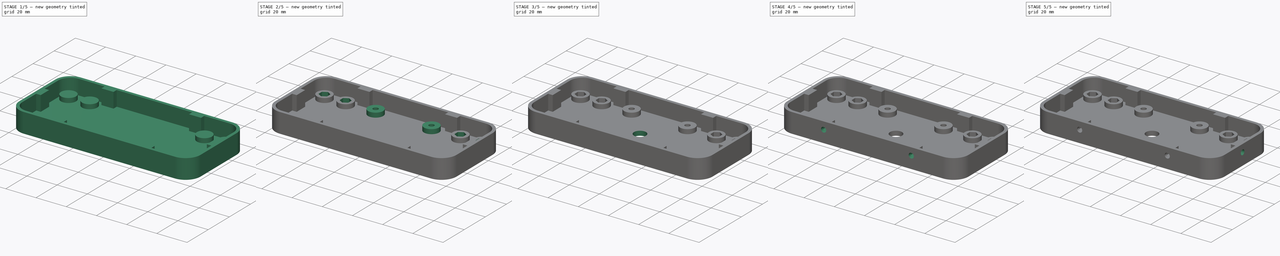
[diagram: build sequence overview — one tinted view per stage of 5, left to right]
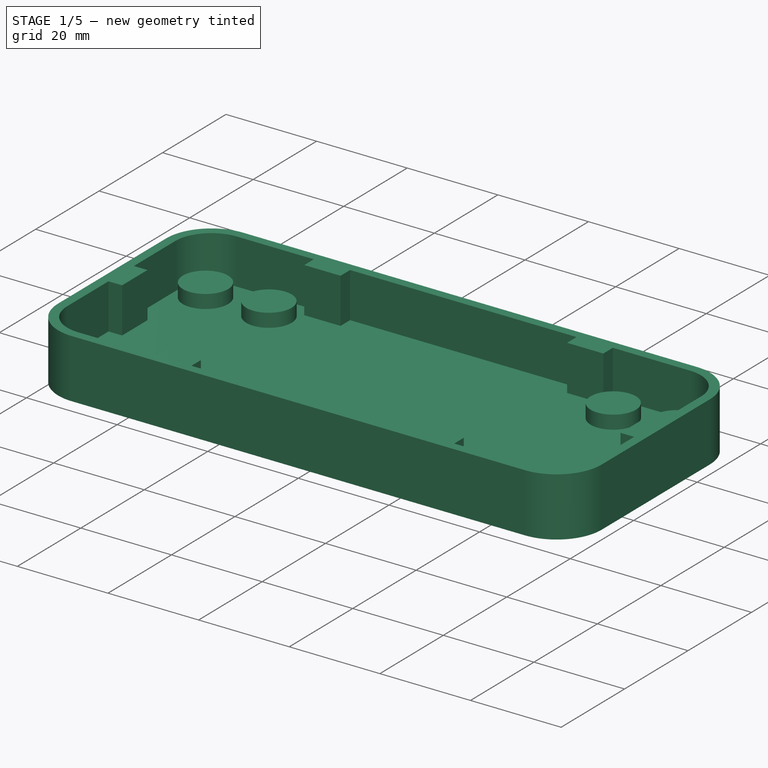
[diagram: stage 1 of 5 — iso view after this stage's code; geometry added in this stage tinted green]
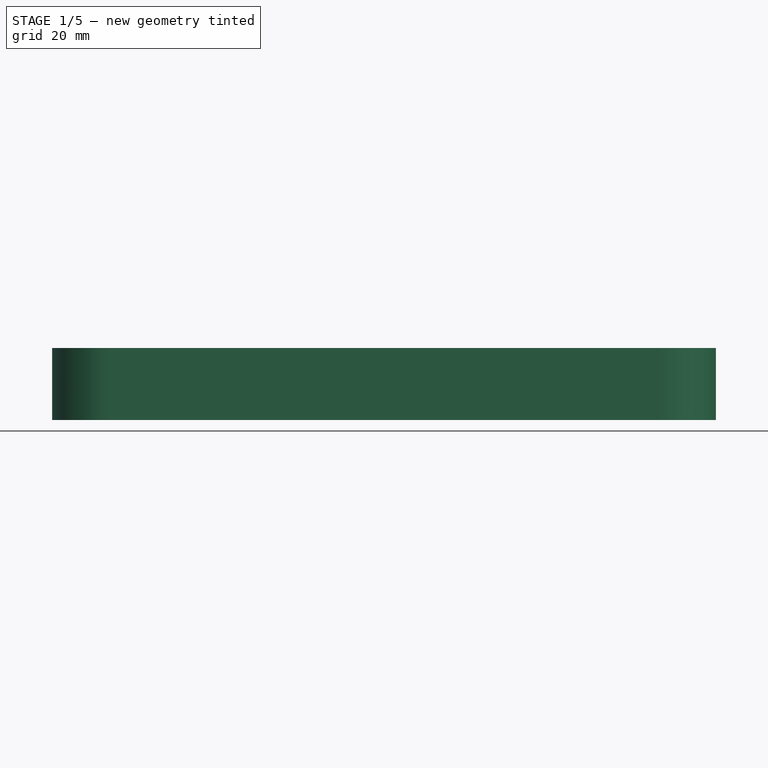
[diagram: stage 1 of 5 — front view after this stage's code; geometry added in this stage tinted green]
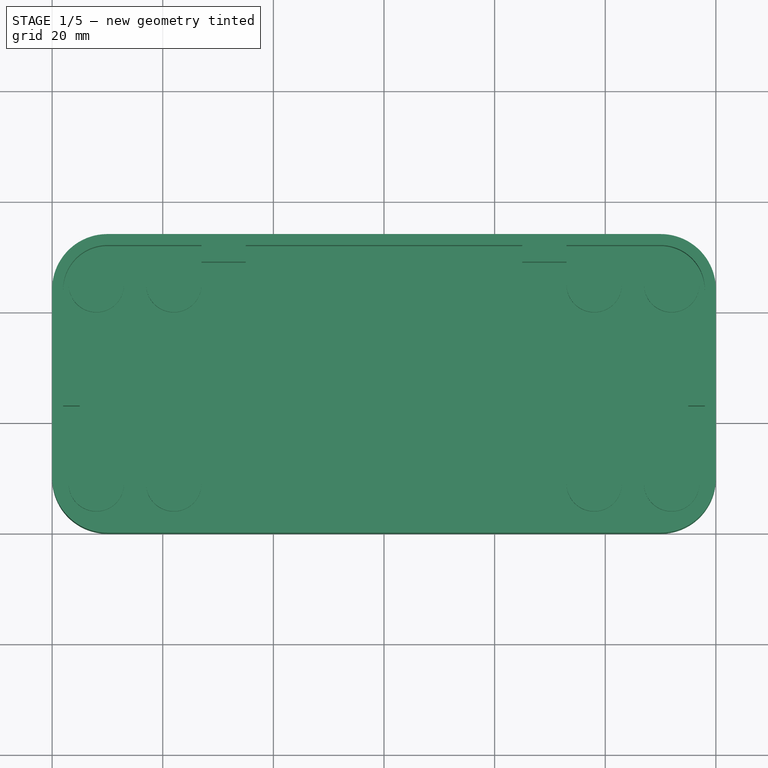
[diagram: stage 1 of 5 — top view after this stage's code; geometry added in this stage tinted green]
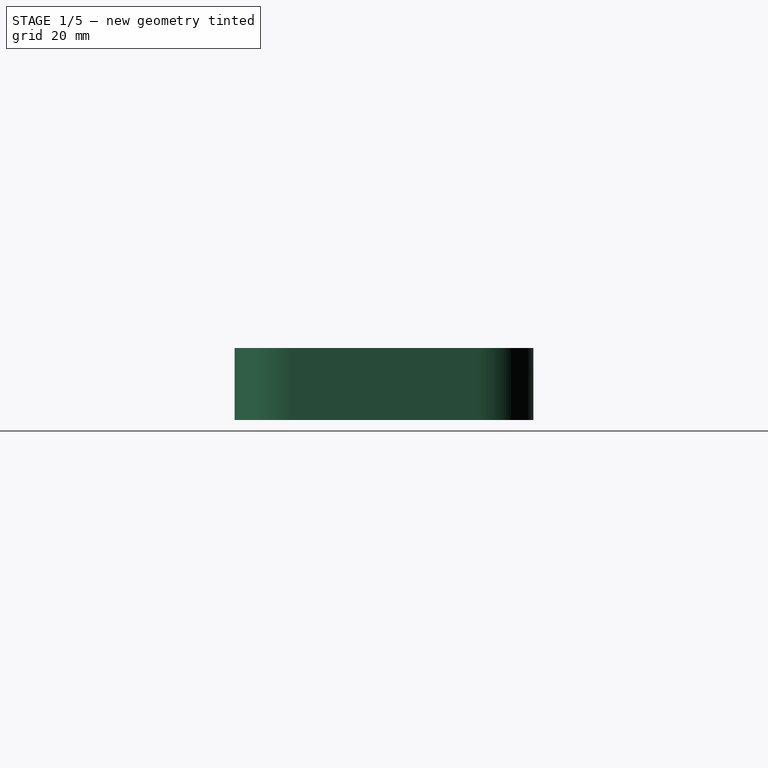
[diagram: stage 1 of 5 — right view after this stage's code; geometry added in this stage tinted green]
FCSTD DOCUMENT  (FreeCAD 0.14R3703 (Git))
Label: MotorControlChassis
License: All rights reserved
LicenseURL: http://en.wikipedia.org/wiki/All_rights_reserved
objects: Sketcher::SketchObject×17, PartDesign::Pocket×13, PartDesign::Pad×4
note: 51 computed .brp shape members not serialized (recipe doc carries the construction recipe); baked Part::Feature solids carry a one-line shape summary decoded from their .brp

FEATURE [Sketcher::SketchObject] Sketch
  sketch-geometry (16):
    g0: ArcOfCircle CenterX=10 CenterY=10 CenterZ=0 NormalX=0 NormalY=0 NormalZ=1 Radius=10 StartAngle=3.14159 EndAngle=4.71239
    g1: ArcOfCircle CenterX=110 CenterY=44 CenterZ=0 NormalX=0 NormalY=0 NormalZ=1 Radius=10 StartAngle=0 EndAngle=1.5708
    g2: ArcOfCircle CenterX=110 CenterY=10 CenterZ=0 NormalX=0 NormalY=0 NormalZ=1 Radius=10 StartAngle=4.71239 EndAngle=6.28319
    g3: ArcOfCircle CenterX=10 CenterY=44 CenterZ=0 NormalX=0 NormalY=0 NormalZ=1 Radius=10 StartAngle=1.5708 EndAngle=3.14159
    g4: LineSegment [constr] StartX=10 StartY=44 StartZ=0 EndX=10 EndY=54 EndZ=0
    g5: LineSegment StartX=10 StartY=54 StartZ=0 EndX=110 EndY=54 EndZ=0
    g6: LineSegment [constr] StartX=110 StartY=54 StartZ=0 EndX=110 EndY=44 EndZ=0
    g7: LineSegment [constr] StartX=110 StartY=44 StartZ=0 EndX=120 EndY=44 EndZ=0
    g8: LineSegment StartX=120 StartY=44 StartZ=0 EndX=120 EndY=10 EndZ=0
    g9: LineSegment [constr] StartX=120 StartY=10 StartZ=0 EndX=110 EndY=10 EndZ=0
    g10: LineSegment [constr] StartX=110 StartY=10 StartZ=0 EndX=110 EndY=0 EndZ=0
    g11: LineSegment StartX=110 StartY=0 StartZ=0 EndX=10 EndY=0 EndZ=0
    g12: LineSegment [constr] StartX=10 StartY=0 StartZ=0 EndX=10 EndY=10 EndZ=0
    g13: LineSegment [constr] StartX=10 StartY=10 StartZ=0 EndX=0 EndY=10 EndZ=0
    g14: LineSegment StartX=0 StartY=10 StartZ=0 EndX=0 EndY=44 EndZ=0
    g15: LineSegment [constr] StartX=0 StartY=44 StartZ=0 EndX=10 EndY=44 EndZ=0
  constraints (44):
    c: PointOnObject(g0,g-2)
    c: Coincident(g4,g3)
    c: Coincident(g4,g3)
    c: Coincident(g4,g5)
    c: Coincident(g5,g1)
    c: Coincident(g5,g6)
    c: Coincident(g6,g1)
    c: Vertical(g6)
    c: Coincident(g6,g7)
    c: Coincident(g7,g1)
    c: Horizontal(g7)
    c: Coincident(g7,g8)
    c: Coincident(g8,g2)
    c: Vertical(g8)
    c: Coincident(g8,g9)
    c: Coincident(g9,g2)
    c: Coincident(g9,g10)
    c: Coincident(g10,g2)
    c: Vertical(g10)
    c: Coincident(g10,g11)
    c: Coincident(g11,g0)
    c: Horizontal(g11)
    c: Coincident(g11,g12)
    c: Coincident(g12,g0)
    c: Coincident(g12,g13)
    c: Coincident(g13,g0)
    c: Horizontal(g13)
    c: Coincident(g13,g14)
    c: Coincident(g14,g3)
    c: Coincident(g14,g15)
    c: Coincident(g15,g4)
    c: Horizontal(g15)
    c: Horizontal(g5)
    c: Horizontal(g9)
    c: Vertical(g14)
    c: Vertical(g4)
    c: Vertical(g12)
    c: Equal(g1,g3)
    c: Equal(g3,g0)
    c: Equal(g0,g2)
    c: Radius(g1) = 10
    c: PointOnObject(g0,g-1)
    c: DistanceY(g1,g2) = -54
    c: DistanceX(g1,g3) = -120
FEATURE [PartDesign::Pad] Pad
  Length = 3
  Length2 = 100
  Sketch = -> Sketch
  Type = 0
FEATURE [Sketcher::SketchObject] Sketch001
  Placement = pos=(0,0,3) rot=(0,0,1;0rad)
  Support = -> Pad [Face10]
  sketch-geometry (56):
    g0: ArcOfCircle CenterX=10 CenterY=10 CenterZ=0 NormalX=0 NormalY=0 NormalZ=1 Radius=10 StartAngle=3.14159 EndAngle=4.71239
    g1: ArcOfCircle CenterX=110 CenterY=44 CenterZ=0 NormalX=0 NormalY=0 NormalZ=1 Radius=10 StartAngle=0 EndAngle=1.5708
    g2: ArcOfCircle CenterX=110 CenterY=10 CenterZ=0 NormalX=0 NormalY=0 NormalZ=1 Radius=10 StartAngle=4.71239 EndAngle=6.28319
    g3: ArcOfCircle CenterX=10 CenterY=44 CenterZ=0 NormalX=0 NormalY=0 NormalZ=1 Radius=10 StartAngle=1.5708 EndAngle=3.14159
    g4: LineSegment [constr] StartX=10 StartY=44 StartZ=0 EndX=10 EndY=54 EndZ=0
    g5: LineSegment StartX=10 StartY=54 StartZ=0 EndX=110 EndY=54 EndZ=0
    g6: LineSegment [constr] StartX=110 StartY=54 StartZ=0 EndX=110 EndY=44 EndZ=0
    g7: LineSegment [constr] StartX=110 StartY=44 StartZ=0 EndX=120 EndY=44 EndZ=0
    g8: LineSegment StartX=120 StartY=44 StartZ=0 EndX=120 EndY=10 EndZ=0
    g9: LineSegment [constr] StartX=120 StartY=10 StartZ=0 EndX=110 EndY=10 EndZ=0
    g10: LineSegment [constr] StartX=110 StartY=10 StartZ=0 EndX=110 EndY=0 EndZ=0
    g11: LineSegment StartX=110 StartY=0 StartZ=0 EndX=10 EndY=0 EndZ=0
    g12: LineSegment [constr] StartX=10 StartY=0 StartZ=0 EndX=10 EndY=10 EndZ=0
    g13: LineSegment [constr] StartX=10 StartY=10 StartZ=0 EndX=0 EndY=10 EndZ=0
    g14: LineSegment StartX=0 StartY=10 StartZ=0 EndX=0 EndY=44 EndZ=0
    g15: LineSegment [constr] StartX=0 StartY=44 StartZ=0 EndX=10 EndY=44 EndZ=0
    g16: ArcOfCircle CenterX=10 CenterY=44 CenterZ=0 NormalX=0 NormalY=0 NormalZ=1 Radius=8 StartAngle=1.5708 EndAngle=3.14159
    g17: ArcOfCircle CenterX=110 CenterY=44 CenterZ=0 NormalX=0 NormalY=0 NormalZ=1 Radius=8 StartAngle=0 EndAngle=1.5708
    g18: ArcOfCircle CenterX=110 CenterY=10 CenterZ=0 NormalX=0 NormalY=0 NormalZ=1 Radius=8 StartAngle=4.71239 EndAngle=6.28319
    g19: ArcOfCircle CenterX=10 CenterY=10 CenterZ=0 NormalX=0 NormalY=0 NormalZ=1 Radius=8 StartAngle=3.14159 EndAngle=4.71239
    g20: LineSegment StartX=10 StartY=52 StartZ=0 EndX=27 EndY=52 EndZ=0
    g21: LineSegment StartX=27 StartY=52 StartZ=0 EndX=27 EndY=49 EndZ=0
    g22: LineSegment StartX=27 StartY=49 StartZ=0 EndX=35 EndY=49 EndZ=0
    g23: LineSegment StartX=35 StartY=49 StartZ=0 EndX=35 EndY=52 EndZ=0
    g24: LineSegment StartX=35 StartY=52 StartZ=0 EndX=85 EndY=52 EndZ=0
    g25: LineSegment StartX=85 StartY=52 StartZ=0 EndX=85 EndY=49 EndZ=0
    g26: LineSegment StartX=85 StartY=49 StartZ=0 EndX=93 EndY=49 EndZ=0
    g27: LineSegment StartX=93 StartY=49 StartZ=0 EndX=93 EndY=52 EndZ=0
    g28: LineSegment StartX=93 StartY=52 StartZ=0 EndX=110 EndY=52 EndZ=0
    g29: LineSegment [constr] StartX=85 StartY=52 StartZ=0 EndX=93 EndY=52 EndZ=0
    g30: LineSegment [constr] StartX=27 StartY=52 StartZ=0 EndX=35 EndY=52 EndZ=0
    g31: LineSegment [constr] StartX=35 StartY=49 StartZ=0 EndX=85 EndY=49 EndZ=0
    g32: LineSegment StartX=10 StartY=2 StartZ=0 EndX=27 EndY=2 EndZ=0
    g33: LineSegment StartX=27 StartY=2 StartZ=0 EndX=27 EndY=5 EndZ=0
    g34: LineSegment StartX=27 StartY=5 StartZ=0 EndX=35 EndY=5 EndZ=0
    g35: LineSegment StartX=35 StartY=5 StartZ=0 EndX=35 EndY=2 EndZ=0
    g36: LineSegment StartX=35 StartY=2 StartZ=0 EndX=85 EndY=2 EndZ=0
    g37: LineSegment StartX=85 StartY=2 StartZ=0 EndX=85 EndY=5 EndZ=0
    g38: LineSegment StartX=85 StartY=5 StartZ=0 EndX=93 EndY=5 EndZ=0
    g39: LineSegment StartX=93 StartY=5 StartZ=0 EndX=93 EndY=2 EndZ=0
    g40: LineSegment StartX=93 StartY=2 StartZ=0 EndX=110 EndY=2 EndZ=0
    g41: LineSegment [constr] StartX=93 StartY=2 StartZ=0 EndX=85 EndY=2 EndZ=0
    g42: LineSegment [constr] StartX=85 StartY=5 StartZ=0 EndX=35 EndY=5 EndZ=0
    g43: LineSegment [constr] StartX=35 StartY=2 StartZ=0 EndX=27 EndY=2 EndZ=0
    g44: LineSegment StartX=2 StartY=44 StartZ=0 EndX=2 EndY=31 EndZ=0
    g45: LineSegment StartX=2 StartY=31 StartZ=0 EndX=5 EndY=31 EndZ=0
    g46: LineSegment StartX=5 StartY=31 StartZ=0 EndX=5 EndY=23 EndZ=0
    g47: LineSegment StartX=5 StartY=23 StartZ=0 EndX=2 EndY=23 EndZ=0
    g48: LineSegment StartX=2 StartY=23 StartZ=0 EndX=2 EndY=10 EndZ=0
    g49: LineSegment [constr] StartX=2 StartY=31 StartZ=0 EndX=2 EndY=23 EndZ=0
    g50: LineSegment StartX=118 StartY=44 StartZ=0 EndX=118 EndY=31 EndZ=0
    g51: LineSegment StartX=118 StartY=31 StartZ=0 EndX=115 EndY=31 EndZ=0
    g52: LineSegment StartX=115 StartY=31 StartZ=0 EndX=115 EndY=23 EndZ=0
    g53: LineSegment StartX=115 StartY=23 StartZ=0 EndX=118 EndY=23 EndZ=0
    g54: LineSegment StartX=118 StartY=23 StartZ=0 EndX=118 EndY=10 EndZ=0
    g55: LineSegment [constr] StartX=118 StartY=31 StartZ=0 EndX=118 EndY=23 EndZ=0
  constraints (157):
    c: PointOnObject(g0,g-2)
    c: Coincident(g4,g3)
    c: Coincident(g4,g3)
    c: Coincident(g4,g5)
    c: Coincident(g5,g1)
    c: Coincident(g5,g6)
    c: Coincident(g6,g1)
    c: Vertical(g6)
    c: Coincident(g6,g7)
    c: Coincident(g7,g1)
    c: Horizontal(g7)
    c: Coincident(g7,g8)
    c: Coincident(g8,g2)
    c: Vertical(g8)
    c: Coincident(g8,g9)
    c: Coincident(g9,g2)
    c: Coincident(g9,g10)
    c: Coincident(g10,g2)
    c: Vertical(g10)
    c: Coincident(g10,g11)
    c: Coincident(g11,g0)
    c: Horizontal(g11)
    c: Coincident(g11,g12)
    c: Coincident(g12,g0)
    c: Coincident(g12,g13)
    c: Coincident(g13,g0)
    c: Horizontal(g13)
    c: Coincident(g13,g14)
    c: Coincident(g14,g3)
    c: Coincident(g14,g15)
    c: Coincident(g15,g4)
    c: Horizontal(g15)
    c: Horizontal(g5)
    c: Horizontal(g9)
    c: Vertical(g14)
    c: Vertical(g4)
    c: Vertical(g12)
    c: Equal(g1,g3)
    c: Equal(g3,g0)
    c: Equal(g0,g2)
    c: Radius(g1) = 10
    c: PointOnObject(g0,g-1)
    c: DistanceY(g1,g2) = -54
    c: DistanceX(g1,g3) = -120
    c: Coincident(g16,g3)
    c: PointOnObject(g16,g15)
    c: PointOnObject(g16,g4)
    c: Coincident(g17,g1)
    c: PointOnObject(g17,g6)
    c: PointOnObject(g17,g7)
    c: Coincident(g18,g2)
    c: PointOnObject(g18,g9)
    c: PointOnObject(g18,g10)
    c: Coincident(g19,g0)
    c: PointOnObject(g19,g13)
    c: PointOnObject(g19,g12)
    c: Radius(g17) = 8
    c: Horizontal(g20)
    c: Coincident(g20,g21)
    c: Vertical(g21)
    c: Coincident(g21,g22)
    c: Horizontal(g22)
    c: Coincident(g22,g23)
    c: Vertical(g23)
    c: Coincident(g23,g24)
    c: Horizontal(g24)
    c: Coincident(g24,g25)
    c: Vertical(g25)
    c: Coincident(g25,g26)
    c: Horizontal(g26)
    c: Coincident(g26,g27)
    c: Vertical(g27)
    c: Coincident(g27,g28)
    c: Horizontal(g28)
    c: Coincident(g29,g24)
    c: Coincident(g29,g27)
    c: Horizontal(g29)
    c: Coincident(g30,g20)
    c: Coincident(g30,g23)
    c: Horizontal(g30)
    c: Coincident(g31,g22)
    c: Coincident(g31,g25)
    c: Horizontal(g31)
    c: Equal(g29,g30)
    c: Equal(g28,g20)
    c: DistanceX(g30) = 8
    c: DistanceY(g21) = -3
    c: Coincident(g28,g17)
    c: Coincident(g20,g16)
    c: Horizontal(g32)
    c: Coincident(g32,g33)
    c: Vertical(g33)
    c: Coincident(g33,g34)
    c: Horizontal(g34)
    c: Coincident(g34,g35)
    c: Vertical(g35)
    c: Coincident(g35,g36)
    c: Horizontal(g36)
    c: Coincident(g36,g37)
    c: Vertical(g37)
    c: Coincident(g37,g38)
    c: Horizontal(g38)
    c: Coincident(g38,g39)
    c: Vertical(g39)
    c: Coincident(g39,g40)
    c: Horizontal(g40)
    c: Coincident(g41,g39)
    c: Coincident(g41,g36)
    c: Horizontal(g41)
    c: Coincident(g42,g37)
    c: Coincident(g42,g34)
    c: Horizontal(g42)
    c: Coincident(g43,g35)
    c: Coincident(g43,g32)
    c: Horizontal(g43)
    c: Equal(g27,g39)
    c: Equal(g38,g34)
    c: Equal(g34,g26)
    c: Equal(g24,g36)
    c: Equal(g32,g40)
    c: Coincident(g32,g19)
    c: Coincident(g40,g18)
    c: Vertical(g44)
    c: Coincident(g44,g45)
    c: Horizontal(g45)
    c: Coincident(g45,g46)
    c: Vertical(g46)
    c: Coincident(g46,g47)
    c: Horizontal(g47)
    c: Coincident(g47,g48)
    c: Vertical(g48)
    c: Coincident(g49,g44)
    c: Coincident(g49,g47)
    c: Vertical(g49)
    c: Equal(g43,g49)
    c: Equal(g47,g33)
    c: Equal(g44,g48)
    c: Coincident(g44,g16)
    c: Coincident(g48,g19)
    c: Vertical(g50)
    c: Coincident(g50,g51)
    c: Horizontal(g51)
    c: Coincident(g51,g52)
    c: Vertical(g52)
    c: Coincident(g52,g53)
    c: Horizontal(g53)
    c: Coincident(g53,g54)
    c: Vertical(g54)
    c: Coincident(g55,g50)
    c: Coincident(g55,g53)
    c: Equal(g55,g49)
    c: Equal(g45,g51)
    c: Equal(g54,g50)
    c: Vertical(g55)
    c: Coincident(g54,g18)
    c: Coincident(g50,g17)
    c: DistanceX(g22,g25) = 50
FEATURE [PartDesign::Pad] Pad001
  Length = 10
  Length2 = 100
  Sketch = -> Sketch001
  Type = 0
FEATURE [Sketcher::SketchObject] Sketch002
  Placement = pos=(0,0,3) rot=(0,0,1;0rad)
  Support = -> Pad001 [Face51]
  sketch-geometry (19):
    g0: Circle CenterX=8 CenterY=45 CenterZ=0 NormalX=0 NormalY=0 NormalZ=1 Radius=5
    g1: Circle CenterX=22 CenterY=45 CenterZ=0 NormalX=0 NormalY=0 NormalZ=1 Radius=5
    g2: Circle CenterX=8 CenterY=9 CenterZ=0 NormalX=0 NormalY=0 NormalZ=1 Radius=5
    g3: Circle CenterX=22 CenterY=9 CenterZ=0 NormalX=0 NormalY=0 NormalZ=1 Radius=5
    g4: LineSegment [constr] StartX=8 StartY=45 StartZ=0 EndX=22 EndY=45 EndZ=0
    g5: LineSegment [constr] StartX=22 StartY=45 StartZ=0 EndX=22 EndY=9 EndZ=0
    g6: LineSegment [constr] StartX=22 StartY=9 StartZ=0 EndX=8 EndY=9 EndZ=0
    g7: LineSegment [constr] StartX=8 StartY=45 StartZ=0 EndX=8 EndY=27 EndZ=0
    g8: LineSegment [constr] StartX=8 StartY=27 StartZ=0 EndX=8 EndY=9 EndZ=0
    g9: Circle CenterX=98 CenterY=45 CenterZ=0 NormalX=0 NormalY=0 NormalZ=1 Radius=5
    g10: Circle CenterX=112 CenterY=45 CenterZ=0 NormalX=0 NormalY=0 NormalZ=1 Radius=5
    g11: Circle CenterX=98 CenterY=9 CenterZ=0 NormalX=0 NormalY=0 NormalZ=1 Radius=5
    g12: Circle CenterX=112 CenterY=9 CenterZ=0 NormalX=0 NormalY=0 NormalZ=1 Radius=5
    g13: LineSegment [constr] StartX=98 StartY=45 StartZ=0 EndX=112 EndY=45 EndZ=0
    g14: LineSegment [constr] StartX=112 StartY=45 StartZ=0 EndX=112 EndY=9 EndZ=0
    g15: LineSegment [constr] StartX=112 StartY=9 StartZ=0 EndX=98 EndY=9 EndZ=0
    g16: LineSegment [constr] StartX=98 StartY=9 StartZ=0 EndX=98 EndY=45 EndZ=0
    g17: LineSegment [constr] StartX=22 StartY=45 StartZ=0 EndX=98 EndY=45 EndZ=0
    g18: LineSegment [constr] StartX=22 StartY=9 StartZ=0 EndX=98 EndY=9 EndZ=0
  constraints (47):
    c: Coincident(g4,g0)
    c: Coincident(g4,g1)
    c: Horizontal(g4)
    c: Coincident(g4,g5)
    c: Coincident(g5,g3)
    c: Coincident(g5,g6)
    c: Coincident(g6,g2)
    c: Horizontal(g6)
    c: Vertical(g5)
    c: Equal(g0,g1)
    c: Equal(g1,g3)
    c: Equal(g3,g2)
    c: Radius(g1) = 5
    c: DistanceY(g5) = -36
    c: DistanceX(g4) = 14
    c: DistanceX(g2) = 8
    c: Coincident(g7,g0)
    c: Vertical(g7)
    c: Coincident(g7,g8)
    c: Coincident(g8,g2)
    c: Vertical(g8)
    c: Equal(g7,g8)
    c: DistanceY(g7) = 27
    c: Coincident(g13,g10)
    c: Coincident(g13,g14)
    c: Coincident(g14,g12)
    c: Vertical(g14)
    c: Coincident(g14,g15)
    c: Coincident(g15,g11)
    c: Horizontal(g15)
    c: Coincident(g15,g16)
    c: Coincident(g16,g13)
    c: Vertical(g16)
    c: Coincident(g9,g13)
    c: Horizontal(g13)
    c: Coincident(g17,g1)
    c: Coincident(g17,g9)
    c: Horizontal(g17)
    c: Coincident(g18,g3)
    c: Coincident(g18,g11)
    c: Horizontal(g18)
    c: Equal(g9,g10)
    c: Equal(g10,g12)
    c: Equal(g12,g11)
    c: Equal(g11,g1)
    c: Equal(g13,g4)
    c: DistanceX(g12) = 112
FEATURE [PartDesign::Pad] Pad002
  Length = 3
  Length2 = 100
  Sketch = -> Sketch002
  Type = 0
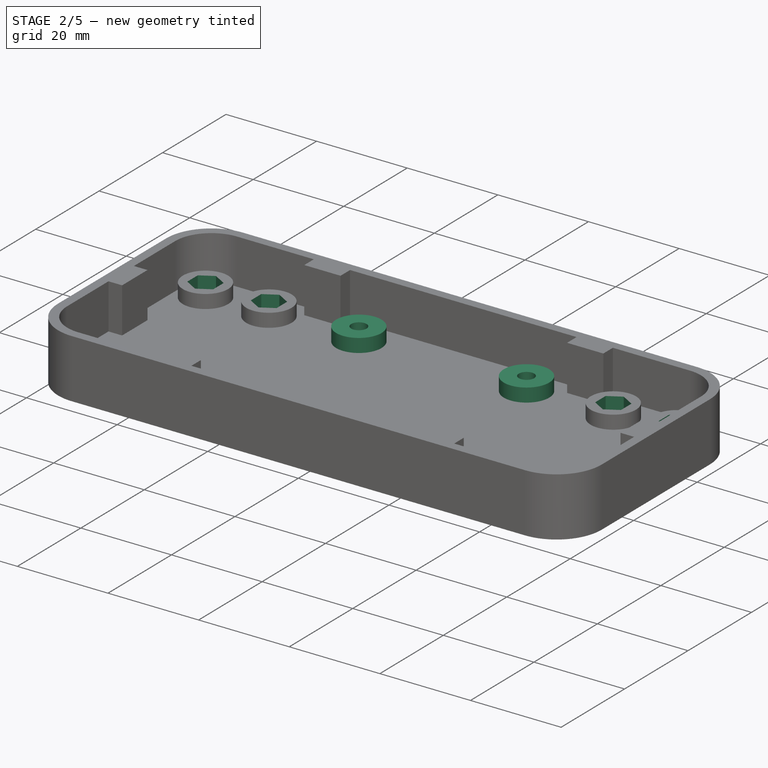
[diagram: stage 2 of 5 — iso view after this stage's code; geometry added in this stage tinted green]
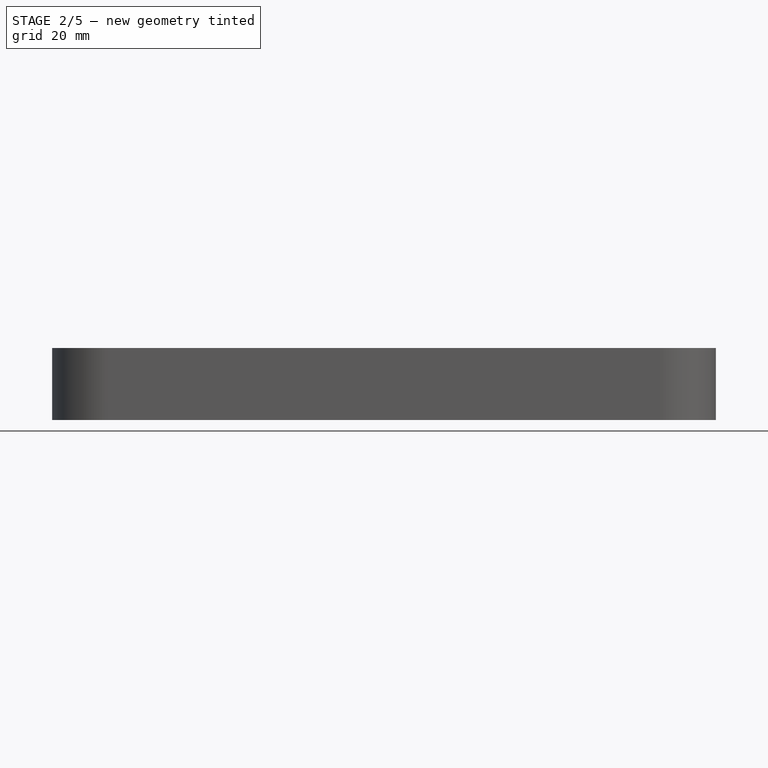
[diagram: stage 2 of 5 — front view after this stage's code; geometry added in this stage tinted green]
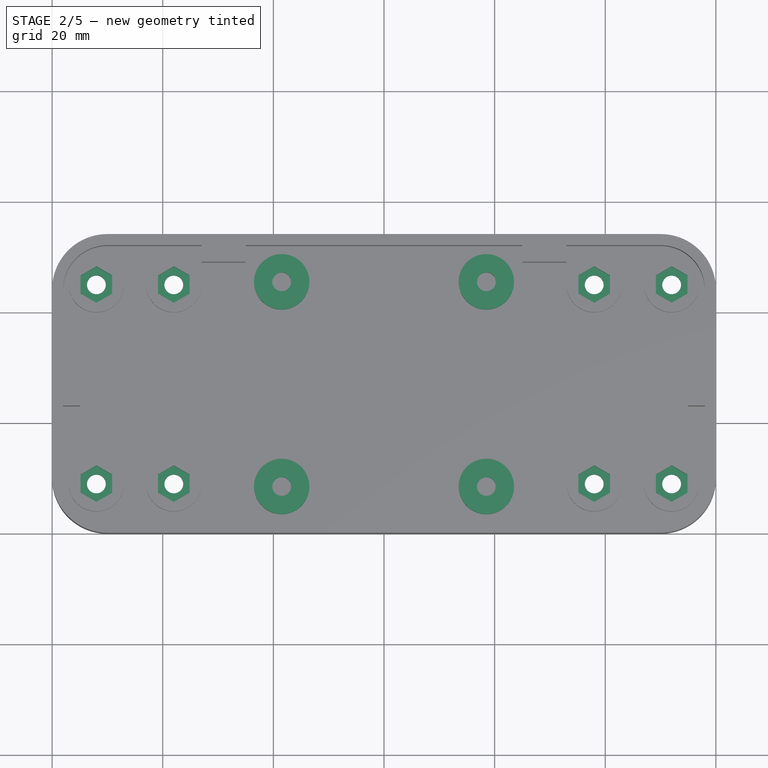
[diagram: stage 2 of 5 — top view after this stage's code; geometry added in this stage tinted green]
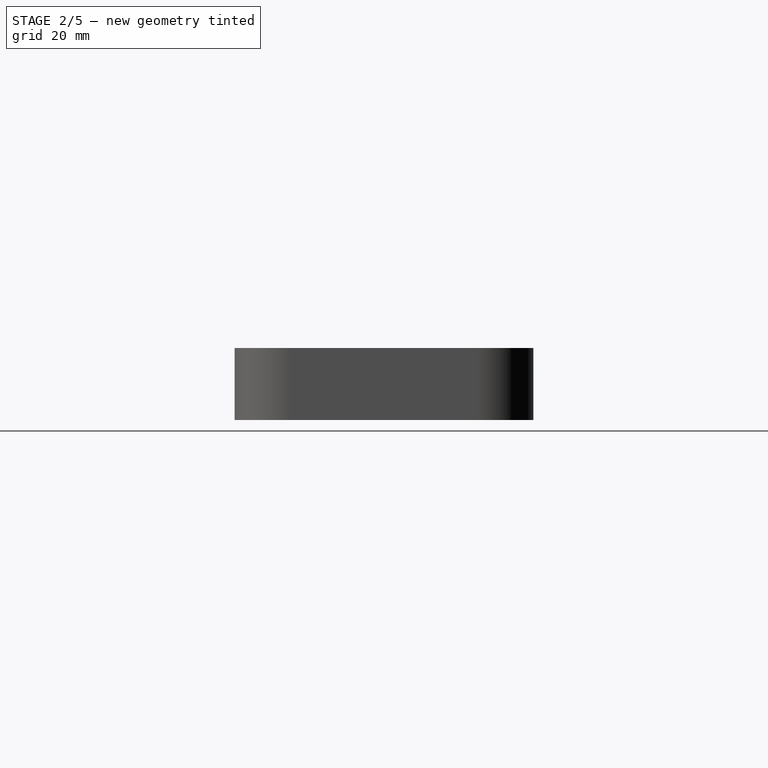
[diagram: stage 2 of 5 — right view after this stage's code; geometry added in this stage tinted green]
FEATURE [Sketcher::SketchObject] Sketch003
  Placement = pos=(0,0,6) rot=(0,0,1;0rad)
  Support = -> Pad002 [Face61]
  sketch-geometry (67):
    g0: LineSegment [constr] StartX=8 StartY=45 StartZ=0 EndX=22 EndY=45 EndZ=0
    g1: LineSegment [constr] StartX=22 StartY=45 StartZ=0 EndX=22 EndY=9 EndZ=0
    g2: LineSegment [constr] StartX=22 StartY=9 StartZ=0 EndX=8 EndY=9 EndZ=0
    g3: LineSegment [constr] StartX=8 StartY=45 StartZ=0 EndX=8 EndY=27 EndZ=0
    g4: LineSegment [constr] StartX=8 StartY=27 StartZ=0 EndX=8 EndY=9 EndZ=0
    g5: LineSegment [constr] StartX=98 StartY=45 StartZ=0 EndX=112 EndY=45 EndZ=0
    g6: LineSegment [constr] StartX=112 StartY=45 StartZ=0 EndX=112 EndY=9 EndZ=0
    g7: LineSegment [constr] StartX=112 StartY=9 StartZ=0 EndX=98 EndY=9 EndZ=0
    g8: LineSegment [constr] StartX=98 StartY=9 StartZ=0 EndX=98 EndY=45 EndZ=0
    g9: LineSegment [constr] StartX=22 StartY=45 StartZ=0 EndX=98 EndY=45 EndZ=0
    g10: LineSegment [constr] StartX=22 StartY=9 StartZ=0 EndX=98 EndY=9 EndZ=0
    g11: LineSegment StartX=10.8579 StartY=43.35 StartZ=0 EndX=10.8579 EndY=46.65 EndZ=0
    g12: LineSegment StartX=10.8579 StartY=46.65 StartZ=0 EndX=8 EndY=48.3 EndZ=0
    g13: LineSegment StartX=8 StartY=48.3 StartZ=0 EndX=5.14212 EndY=46.65 EndZ=0
    g14: LineSegment StartX=5.14212 StartY=46.65 StartZ=0 EndX=5.14212 EndY=43.35 EndZ=0
    g15: LineSegment StartX=5.14212 StartY=43.35 StartZ=0 EndX=8 EndY=41.7 EndZ=0
    g16: LineSegment StartX=8 StartY=41.7 StartZ=0 EndX=10.8579 EndY=43.35 EndZ=0
    g17: Circle [constr] CenterX=8 CenterY=45 CenterZ=0 NormalX=0 NormalY=0 NormalZ=1 Radius=3.3
    g18: LineSegment StartX=24.8579 StartY=43.35 StartZ=0 EndX=24.8579 EndY=46.65 EndZ=0
    g19: LineSegment StartX=24.8579 StartY=46.65 StartZ=0 EndX=22 EndY=48.3 EndZ=0
    g20: LineSegment StartX=22 StartY=48.3 StartZ=0 EndX=19.1421 EndY=46.65 EndZ=0
    g21: LineSegment StartX=19.1421 StartY=46.65 StartZ=0 EndX=19.1421 EndY=43.35 EndZ=0
    g22: LineSegment StartX=19.1421 StartY=43.35 StartZ=0 EndX=22 EndY=41.7 EndZ=0
    g23: LineSegment StartX=22 StartY=41.7 StartZ=0 EndX=24.8579 EndY=43.35 EndZ=0
    g24: Circle [constr] CenterX=22 CenterY=45 CenterZ=0 NormalX=0 NormalY=0 NormalZ=1 Radius=3.3
    g25: LineSegment StartX=10.8579 StartY=7.35 StartZ=0 EndX=10.8579 EndY=10.65 EndZ=0
    g26: LineSegment StartX=10.8579 StartY=10.65 StartZ=0 EndX=8 EndY=12.3 EndZ=0
    g27: LineSegment StartX=8 StartY=12.3 StartZ=0 EndX=5.14212 EndY=10.65 EndZ=0
    g28: LineSegment StartX=5.14212 StartY=10.65 StartZ=0 EndX=5.14212 EndY=7.35 EndZ=0
    g29: LineSegment StartX=5.14212 StartY=7.35 StartZ=0 EndX=8 EndY=5.7 EndZ=0
    g30: LineSegment StartX=8 StartY=5.7 StartZ=0 EndX=10.8579 EndY=7.35 EndZ=0
    g31: Circle [constr] CenterX=8 CenterY=9 CenterZ=0 NormalX=0 NormalY=0 NormalZ=1 Radius=3.3
    g32: LineSegment StartX=22 StartY=5.7 StartZ=0 EndX=24.8579 EndY=7.35 EndZ=0
    g33: LineSegment StartX=24.8579 StartY=7.35 StartZ=0 EndX=24.8579 EndY=10.65 EndZ=0
    g34: LineSegment StartX=24.8579 StartY=10.65 StartZ=0 EndX=22 EndY=12.3 EndZ=0
    g35: LineSegment StartX=22 StartY=12.3 StartZ=0 EndX=19.1421 EndY=10.65 EndZ=0
    g36: LineSegment StartX=19.1421 StartY=10.65 StartZ=0 EndX=19.1421 EndY=7.35 EndZ=0
    g37: LineSegment StartX=19.1421 StartY=7.35 StartZ=0 EndX=22 EndY=5.7 EndZ=0
    g38: Circle [constr] CenterX=22 CenterY=9 CenterZ=0 NormalX=0 NormalY=0 NormalZ=1 Radius=3.3
    g39: LineSegment StartX=95.1421 StartY=46.65 StartZ=0 EndX=95.1421 EndY=43.35 EndZ=0
    g40: LineSegment StartX=95.1421 StartY=43.35 StartZ=0 EndX=98 EndY=41.7 EndZ=0
    g41: LineSegment StartX=98 StartY=41.7 StartZ=0 EndX=100.858 EndY=43.35 EndZ=0
    g42: LineSegment StartX=100.858 StartY=43.35 StartZ=0 EndX=100.858 EndY=46.65 EndZ=0
    g43: LineSegment StartX=100.858 StartY=46.65 StartZ=0 EndX=98 EndY=48.3 EndZ=0
    g44: LineSegment StartX=98 StartY=48.3 StartZ=0 EndX=95.1421 EndY=46.65 EndZ=0
    g45: Circle [constr] CenterX=98 CenterY=45 CenterZ=0 NormalX=0 NormalY=0 NormalZ=1 Radius=3.3
    g46: LineSegment StartX=109.142 StartY=43.35 StartZ=0 EndX=112 EndY=41.7 EndZ=0
    g47: LineSegment StartX=112 StartY=41.7 StartZ=0 EndX=114.858 EndY=43.35 EndZ=0
    g48: LineSegment StartX=114.858 StartY=43.35 StartZ=0 EndX=114.858 EndY=46.65 EndZ=0
    g49: LineSegment StartX=114.858 StartY=46.65 StartZ=0 EndX=112 EndY=48.3 EndZ=0
    g50: LineSegment StartX=112 StartY=48.3 StartZ=0 EndX=109.142 EndY=46.65 EndZ=0
    g51: LineSegment StartX=109.142 StartY=46.65 StartZ=0 EndX=109.142 EndY=43.35 EndZ=0
    g52: Circle [constr] CenterX=112 CenterY=45 CenterZ=0 NormalX=0 NormalY=0 NormalZ=1 Radius=3.3
    g53: LineSegment StartX=112 StartY=5.7 StartZ=0 EndX=114.858 EndY=7.35 EndZ=0
    g54: LineSegment StartX=114.858 StartY=7.35 StartZ=0 EndX=114.858 EndY=10.65 EndZ=0
    g55: LineSegment StartX=114.858 StartY=10.65 StartZ=0 EndX=112 EndY=12.3 EndZ=0
    g56: LineSegment StartX=112 StartY=12.3 StartZ=0 EndX=109.142 EndY=10.65 EndZ=0
    g57: LineSegment StartX=109.142 StartY=10.65 StartZ=0 EndX=109.142 EndY=7.35 EndZ=0
    g58: LineSegment StartX=109.142 StartY=7.35 StartZ=0 EndX=112 EndY=5.7 EndZ=0
    g59: Circle [constr] CenterX=112 CenterY=9 CenterZ=0 NormalX=0 NormalY=0 NormalZ=1 Radius=3.3
    g60: LineSegment StartX=95.1421 StartY=7.35 StartZ=0 EndX=98 EndY=5.7 EndZ=0
    g61: LineSegment StartX=98 StartY=5.7 StartZ=0 EndX=100.858 EndY=7.35 EndZ=0
    g62: LineSegment StartX=100.858 StartY=7.35 StartZ=0 EndX=100.858 EndY=10.65 EndZ=0
    g63: LineSegment StartX=100.858 StartY=10.65 StartZ=0 EndX=98 EndY=12.3 EndZ=0
    g64: LineSegment StartX=98 StartY=12.3 StartZ=0 EndX=95.1421 EndY=10.65 EndZ=0
    g65: LineSegment StartX=95.1421 StartY=10.65 StartZ=0 EndX=95.1421 EndY=7.35 EndZ=0
    g66: Circle [constr] CenterX=98 CenterY=9 CenterZ=0 NormalX=0 NormalY=0 NormalZ=1 Radius=3.3
  constraints (159):
    c: Horizontal(g0)
    c: Coincident(g0,g1)
    c: Coincident(g1,g2)
    c: Horizontal(g2)
    c: Vertical(g1)
    c: DistanceY(g1) = -36
    c: DistanceX(g0) = 14
    c: Vertical(g3)
    c: Coincident(g3,g4)
    c: Vertical(g4)
    c: Equal(g3,g4)
    c: DistanceY(g3) = 27
    c: Coincident(g5,g6)
    c: Vertical(g6)
    c: Coincident(g6,g7)
    c: Horizontal(g7)
    c: Coincident(g7,g8)
    c: Coincident(g8,g5)
    c: Vertical(g8)
    c: Horizontal(g5)
    c: Horizontal(g9)
    c: Horizontal(g10)
    c: Equal(g5,g0)
    c: Coincident(g11,g12)
    c: Coincident(g12,g13)
    c: Coincident(g13,g14)
    c: Coincident(g14,g15)
    c: Coincident(g15,g16)
    c: Coincident(g16,g11)
    c: Equal(g11, g12-g16) x5
    c: PointOnObject(g11,g17)
    c: PointOnObject(g12,g17)
    c: PointOnObject(g13,g17)
    c: PointOnObject(g14,g17)
    c: PointOnObject(g15,g17)
    c: PointOnObject(g16,g17)
    c: Coincident(g17,g0)
    c: Coincident(g18,g19)
    c: Coincident(g19,g20)
    c: Coincident(g20,g21)
    c: Coincident(g21,g22)
    c: Coincident(g22,g23)
    c: Coincident(g23,g18)
    c: Equal(g18, g19-g23) x5
    c: PointOnObject(g18,g24)
    c: PointOnObject(g19,g24)
    c: PointOnObject(g20,g24)
    c: PointOnObject(g21,g24)
    c: PointOnObject(g22,g24)
    c: PointOnObject(g23,g24)
    c: Coincident(g24,g0)
    c: Coincident(g25,g26)
    c: Coincident(g26,g27)
    c: Coincident(g27,g28)
    c: Coincident(g28,g29)
    c: Coincident(g29,g30)
    c: Coincident(g30,g25)
    c: Equal(g25, g26-g30) x5
    c: PointOnObject(g25,g31)
    c: PointOnObject(g26,g31)
    c: PointOnObject(g27,g31)
    c: PointOnObject(g28,g31)
    c: PointOnObject(g29,g31)
    c: PointOnObject(g30,g31)
    c: Coincident(g31,g2)
    c: Coincident(g32,g33)
    c: Coincident(g33,g34)
    c: Coincident(g34,g35)
    c: Coincident(g35,g36)
    c: Coincident(g36,g37)
    c: Coincident(g37,g32)
    c: Equal(g32, g33-g37) x5
    c: PointOnObject(g32,g38)
    c: PointOnObject(g33,g38)
    c: PointOnObject(g34,g38)
    c: PointOnObject(g35,g38)
    c: PointOnObject(g36,g38)
    c: PointOnObject(g37,g38)
    c: Coincident(g38,g1)
    c: Coincident(g39,g40)
    c: Coincident(g40,g41)
    c: Coincident(g41,g42)
    c: Coincident(g42,g43)
    c: Coincident(g43,g44)
    c: Coincident(g44,g39)
    c: Equal(g39, g40-g44) x5
    c: PointOnObject(g39,g45)
    c: PointOnObject(g40,g45)
    c: PointOnObject(g41,g45)
    c: PointOnObject(g42,g45)
    c: PointOnObject(g43,g45)
    c: PointOnObject(g44,g45)
    c: Coincident(g45,g5)
    c: Coincident(g46,g47)
    c: Coincident(g47,g48)
    c: Coincident(g48,g49)
    c: Coincident(g49,g50)
    c: Coincident(g50,g51)
    c: Coincident(g51,g46)
    c: Equal(g46, g47-g51) x5
    c: PointOnObject(g46,g52)
    c: PointOnObject(g47,g52)
    c: PointOnObject(g48,g52)
    c: PointOnObject(g49,g52)
    c: PointOnObject(g50,g52)
    c: PointOnObject(g51,g52)
    c: Coincident(g52,g5)
    c: Coincident(g53,g54)
    c: Coincident(g54,g55)
    c: Coincident(g55,g56)
    c: Coincident(g56,g57)
    c: Coincident(g57,g58)
    c: Coincident(g58,g53)
    c: Equal(g53, g54-g58) x5
    c: PointOnObject(g53,g59)
    c: PointOnObject(g54,g59)
    c: PointOnObject(g55,g59)
    c: PointOnObject(g56,g59)
    c: PointOnObject(g57,g59)
    c: PointOnObject(g58,g59)
    c: Coincident(g59,g6)
    c: Coincident(g60,g61)
    c: Coincident(g61,g62)
    c: Coincident(g62,g63)
    c: Coincident(g63,g64)
    c: Coincident(g64,g65)
    c: Coincident(g65,g60)
    c: Equal(g60, g61-g65) x5
    c: PointOnObject(g60,g66)
    c: PointOnObject(g61,g66)
    c: PointOnObject(g62,g66)
    c: PointOnObject(g63,g66)
    c: PointOnObject(g64,g66)
    c: PointOnObject(g65,g66)
    c: Coincident(g66,g7)
    c: Equal(g31,g38)
    c: Equal(g38,g17)
    c: Equal(g17,g24)
    c: Equal(g24,g45)
    c: Equal(g45,g66)
    c: Equal(g66,g59)
    c: Equal(g59,g52)
    c: Coincident(g9,g0)
    c: Coincident(g0,g3)
    c: Coincident(g2,g4)
    c: Coincident(g10,g1)
    c: Coincident(g7,g10)
    c: Coincident(g9,g5)
    c: Radius(g24) = 3.3
    c: DistanceX(g2) = 8
    c: DistanceX(g6) = 112
    c: Vertical(g57)
    c: Vertical(g65)
    c: Vertical(g39)
    c: Vertical(g51)
    c: Vertical(g28)
    c: Vertical(g36)
    c: Vertical(g21)
    c: Vertical(g14)
FEATURE [PartDesign::Pocket] Pocket
  Length = 3
  Sketch = -> Sketch003
  Type = 0
FEATURE [Sketcher::SketchObject] Sketch004
  Placement = pos=(0,0,3) rot=(0,0,1;0rad)
  Support = -> Pocket [Face51]
  sketch-geometry (19):
    g0: Circle CenterX=8 CenterY=45 CenterZ=0 NormalX=0 NormalY=0 NormalZ=1 Radius=1.7
    g1: Circle CenterX=22 CenterY=45 CenterZ=0 NormalX=0 NormalY=0 NormalZ=1 Radius=1.7
    g2: Circle CenterX=8 CenterY=9 CenterZ=0 NormalX=0 NormalY=0 NormalZ=1 Radius=1.7
    g3: Circle CenterX=22 CenterY=9 CenterZ=0 NormalX=0 NormalY=0 NormalZ=1 Radius=1.7
    g4: LineSegment [constr] StartX=8 StartY=45 StartZ=0 EndX=22 EndY=45 EndZ=0
    g5: LineSegment [constr] StartX=22 StartY=45 StartZ=0 EndX=22 EndY=9 EndZ=0
    g6: LineSegment [constr] StartX=22 StartY=9 StartZ=0 EndX=8 EndY=9 EndZ=0
    g7: LineSegment [constr] StartX=8 StartY=45 StartZ=0 EndX=8 EndY=27 EndZ=0
    g8: LineSegment [constr] StartX=8 StartY=27 StartZ=0 EndX=8 EndY=9 EndZ=0
    g9: Circle CenterX=98 CenterY=45 CenterZ=0 NormalX=0 NormalY=0 NormalZ=1 Radius=1.7
    g10: Circle CenterX=112 CenterY=45 CenterZ=0 NormalX=0 NormalY=0 NormalZ=1 Radius=1.7
    g11: Circle CenterX=98 CenterY=9 CenterZ=0 NormalX=0 NormalY=0 NormalZ=1 Radius=1.7
    g12: Circle CenterX=112 CenterY=9 CenterZ=0 NormalX=0 NormalY=0 NormalZ=1 Radius=1.7
    g13: LineSegment [constr] StartX=98 StartY=45 StartZ=0 EndX=112 EndY=45 EndZ=0
    g14: LineSegment [constr] StartX=112 StartY=45 StartZ=0 EndX=112 EndY=9 EndZ=0
    g15: LineSegment [constr] StartX=112 StartY=9 StartZ=0 EndX=98 EndY=9 EndZ=0
    g16: LineSegment [constr] StartX=98 StartY=9 StartZ=0 EndX=98 EndY=45 EndZ=0
    g17: LineSegment [constr] StartX=22 StartY=45 StartZ=0 EndX=98 EndY=45 EndZ=0
    g18: LineSegment [constr] StartX=22 StartY=9 StartZ=0 EndX=98 EndY=9 EndZ=0
  constraints (47):
    c: Coincident(g4,g0)
    c: Coincident(g4,g1)
    c: Horizontal(g4)
    c: Coincident(g4,g5)
    c: Coincident(g5,g3)
    c: Coincident(g5,g6)
    c: Coincident(g6,g2)
    c: Horizontal(g6)
    c: Vertical(g5)
    c: Equal(g0,g1)
    c: Equal(g1,g3)
    c: Equal(g3,g2)
    c: Radius(g1) = 1.7
    c: DistanceY(g5) = -36
    c: DistanceX(g4) = 14
    c: DistanceX(g2) = 8
    c: Coincident(g7,g0)
    c: Vertical(g7)
    c: Coincident(g7,g8)
    c: Coincident(g8,g2)
    c: Vertical(g8)
    c: Equal(g7,g8)
    c: DistanceY(g7) = 27
    c: Coincident(g13,g10)
    c: Coincident(g13,g14)
    c: Coincident(g14,g12)
    c: Vertical(g14)
    c: Coincident(g14,g15)
    c: Coincident(g15,g11)
    c: Horizontal(g15)
    c: Coincident(g15,g16)
    c: Coincident(g16,g13)
    c: Vertical(g16)
    c: Coincident(g9,g13)
    c: Horizontal(g13)
    c: Coincident(g17,g1)
    c: Coincident(g17,g9)
    c: Horizontal(g17)
    c: Coincident(g18,g3)
    c: Coincident(g18,g11)
    c: Horizontal(g18)
    c: Equal(g9,g10)
    c: Equal(g10,g12)
    c: Equal(g12,g11)
    c: Equal(g11,g1)
    c: Equal(g13,g4)
    c: DistanceX(g12) = 112
FEATURE [PartDesign::Pocket] Pocket001
  Length = 3
  Sketch = -> Sketch004
  Type = 0
FEATURE [Sketcher::SketchObject] Sketch005
  Placement = pos=(0,0,3) rot=(0,0,1;0rad)
  Support = -> Pocket001 [Face26]
  sketch-geometry (12):
    g0: LineSegment [constr] StartX=41.5 StartY=45.5 StartZ=0 EndX=78.5 EndY=45.5 EndZ=0
    g1: LineSegment [constr] StartX=78.5 StartY=45.5 StartZ=0 EndX=78.5 EndY=8.5 EndZ=0
    g2: LineSegment [constr] StartX=78.5 StartY=8.5 StartZ=0 EndX=41.5 EndY=8.5 EndZ=0
    g3: LineSegment [constr] StartX=41.5 StartY=8.5 StartZ=0 EndX=41.5 EndY=45.5 EndZ=0
    g4: LineSegment [constr] StartX=78.5 StartY=8.5 StartZ=0 EndX=120 EndY=8.5 EndZ=0
    g5: LineSegment [constr] StartX=41.5 StartY=8.5 StartZ=0 EndX=0 EndY=8.5 EndZ=0
    g6: LineSegment [constr] StartX=41.5 StartY=8.5 StartZ=0 EndX=41.5 EndY=0 EndZ=0
    g7: LineSegment [constr] StartX=41.5 StartY=45.5 StartZ=0 EndX=41.5 EndY=54 EndZ=0
    g8: Circle CenterX=41.5 CenterY=45.5 CenterZ=0 NormalX=0 NormalY=0 NormalZ=1 Radius=5
    g9: Circle CenterX=78.5 CenterY=45.5 CenterZ=0 NormalX=0 NormalY=0 NormalZ=1 Radius=5
    g10: Circle CenterX=78.5 CenterY=8.5 CenterZ=0 NormalX=0 NormalY=0 NormalZ=1 Radius=5
    g11: Circle CenterX=41.5 CenterY=8.5 CenterZ=0 NormalX=0 NormalY=0 NormalZ=1 Radius=5
  constraints (32):
    c: Coincident(g0,g1)
    c: Coincident(g1,g2)
    c: Coincident(g2,g3)
    c: Coincident(g3,g0)
    c: Horizontal(g0)
    c: Horizontal(g2)
    c: Vertical(g1)
    c: Vertical(g3)
    c: Horizontal(g4)
    c: Coincident(g5,g2)
    c: PointOnObject(g5,g-2)
    c: Horizontal(g5)
    c: Coincident(g6,g2)
    c: PointOnObject(g6,g-1)
    c: Vertical(g6)
    c: Coincident(g7,g0)
    c: Vertical(g7)
    c: DistanceY(g3) = 37
    c: Coincident(g4,g1)
    c: DistanceX(g2) = -37
    c: Equal(g5,g4)
    c: DistanceX(g4,g5) = -120
    c: DistanceY(g7,g6) = -54
    c: Equal(g7,g6)
    c: Coincident(g8,g0)
    c: Coincident(g9,g0)
    c: Coincident(g10,g1)
    c: Coincident(g11,g2)
    c: Equal(g9,g8)
    c: Equal(g8,g11)
    c: Equal(g11,g10)
    c: Radius(g9) = 5
FEATURE [PartDesign::Pad] Pad003
  Length = 3
  Length2 = 100
  Sketch = -> Sketch005
  Type = 0
FEATURE [Sketcher::SketchObject] Sketch006
  Placement = pos=(0,0,6) rot=(0,0,1;0rad)
  Support = -> Pad003 [Face139]
  sketch-geometry (12):
    g0: LineSegment [constr] StartX=41.5 StartY=45.5 StartZ=0 EndX=78.5 EndY=45.5 EndZ=0
    g1: LineSegment [constr] StartX=78.5 StartY=45.5 StartZ=0 EndX=78.5 EndY=8.5 EndZ=0
    g2: LineSegment [constr] StartX=78.5 StartY=8.5 StartZ=0 EndX=41.5 EndY=8.5 EndZ=0
    g3: LineSegment [constr] StartX=41.5 StartY=8.5 StartZ=0 EndX=41.5 EndY=45.5 EndZ=0
    g4: LineSegment [constr] StartX=78.5 StartY=8.5 StartZ=0 EndX=120 EndY=8.5 EndZ=0
    g5: LineSegment [constr] StartX=41.5 StartY=8.5 StartZ=0 EndX=0 EndY=8.5 EndZ=0
    g6: LineSegment [constr] StartX=41.5 StartY=8.5 StartZ=0 EndX=41.5 EndY=0 EndZ=0
    g7: LineSegment [constr] StartX=41.5 StartY=45.5 StartZ=0 EndX=41.5 EndY=54 EndZ=0
    g8: Circle CenterX=41.5 CenterY=45.5 CenterZ=0 NormalX=0 NormalY=0 NormalZ=1 Radius=1.7
    g9: Circle CenterX=78.5 CenterY=45.5 CenterZ=0 NormalX=0 NormalY=0 NormalZ=1 Radius=1.7
    g10: Circle CenterX=78.5 CenterY=8.5 CenterZ=0 NormalX=0 NormalY=0 NormalZ=1 Radius=1.7
    g11: Circle CenterX=41.5 CenterY=8.5 CenterZ=0 NormalX=0 NormalY=0 NormalZ=1 Radius=1.7
  constraints (32):
    c: Coincident(g0,g1)
    c: Coincident(g1,g2)
    c: Coincident(g2,g3)
    c: Coincident(g3,g0)
    c: Horizontal(g0)
    c: Horizontal(g2)
    c: Vertical(g1)
    c: Vertical(g3)
    c: Horizontal(g4)
    c: Coincident(g5,g2)
    c: PointOnObject(g5,g-2)
    c: Horizontal(g5)
    c: Coincident(g6,g2)
    c: PointOnObject(g6,g-1)
    c: Vertical(g6)
    c: Coincident(g7,g0)
    c: Vertical(g7)
    c: DistanceY(g3) = 37
    c: Coincident(g4,g1)
    c: DistanceX(g2) = -37
    c: Equal(g5,g4)
    c: DistanceX(g4,g5) = -120
    c: DistanceY(g7,g6) = -54
    c: Equal(g7,g6)
    c: Coincident(g8,g0)
    c: Coincident(g9,g0)
    c: Coincident(g10,g1)
    c: Coincident(g11,g2)
    c: Equal(g9,g8)
    c: Equal(g8,g11)
    c: Equal(g11,g10)
    c: Radius(g9) = 1.7
FEATURE [PartDesign::Pocket] Pocket002
  Length = 2.8
  Sketch = -> Sketch006
  Type = 0
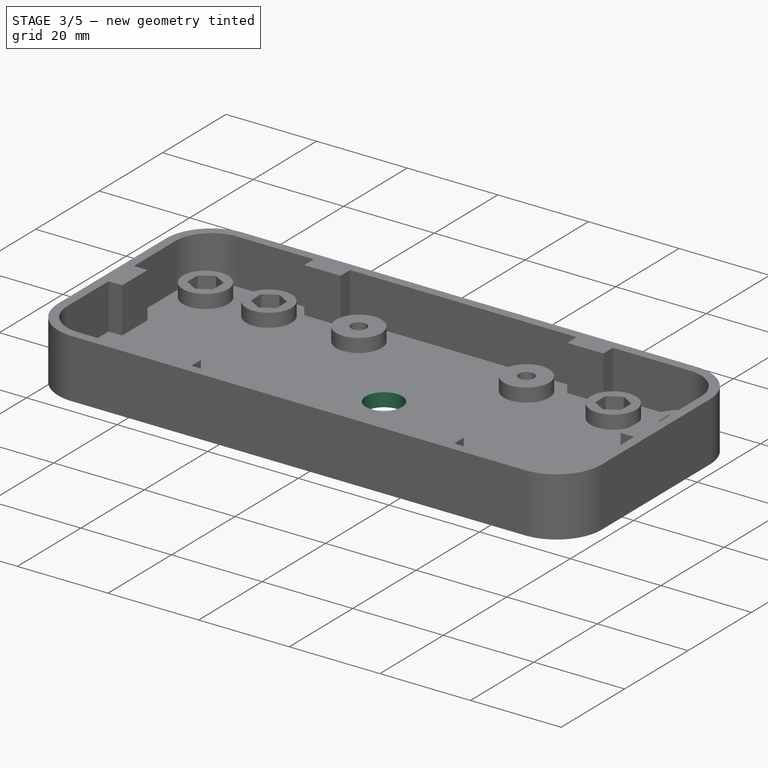
[diagram: stage 3 of 5 — iso view after this stage's code; geometry added in this stage tinted green]
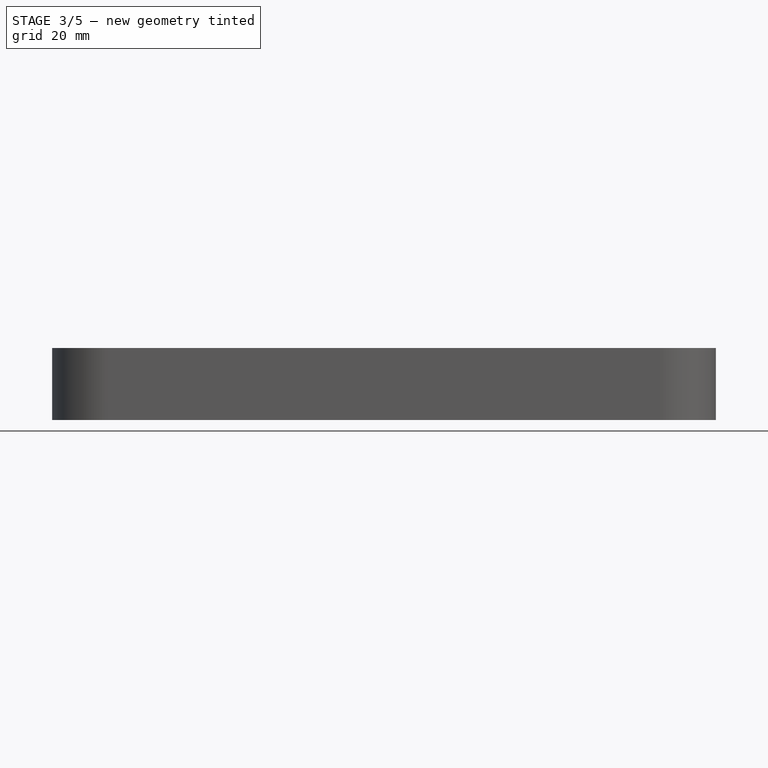
[diagram: stage 3 of 5 — front view after this stage's code; geometry added in this stage tinted green]
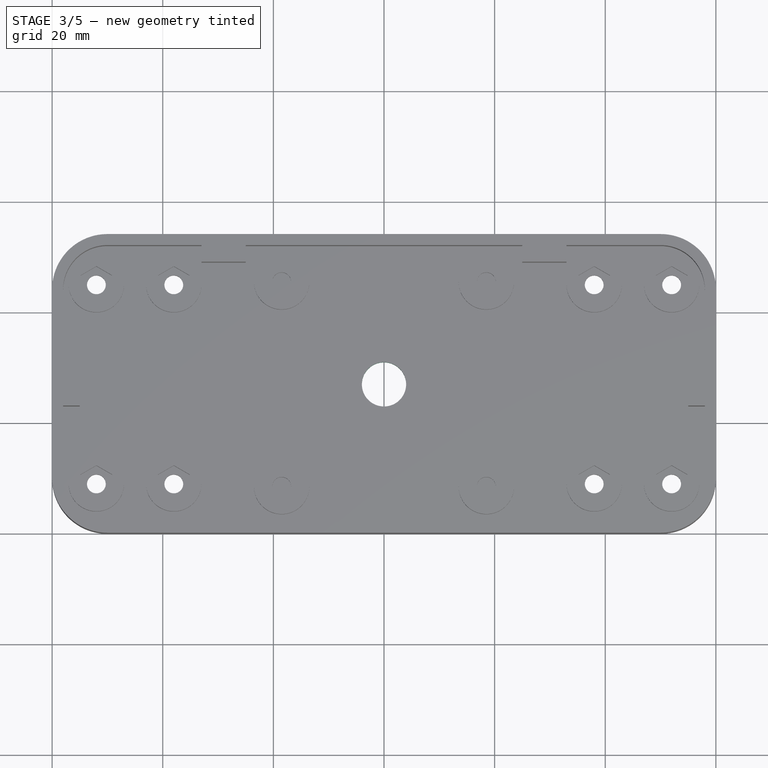
[diagram: stage 3 of 5 — top view after this stage's code; geometry added in this stage tinted green]
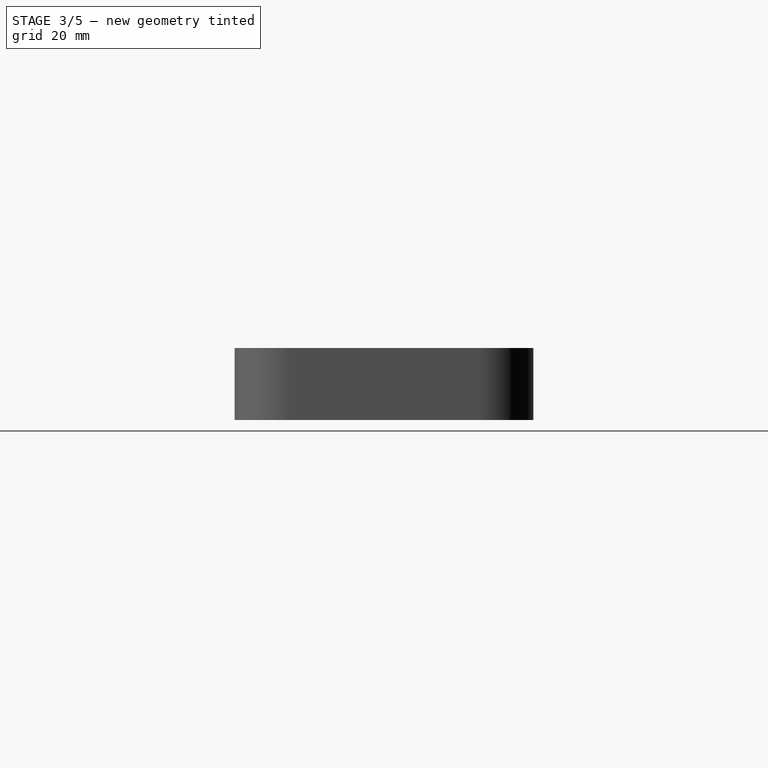
[diagram: stage 3 of 5 — right view after this stage's code; geometry added in this stage tinted green]
FEATURE [Sketcher::SketchObject] Sketch007
  Placement = pos=(0,0,0) rot=(1,0,0;3.14159rad)
  Support = -> Pocket002 [Face1]
  sketch-geometry (36):
    g0: LineSegment [constr] StartX=41.5 StartY=-8.5 StartZ=0 EndX=78.5 EndY=-8.5 EndZ=0
    g1: LineSegment [constr] StartX=78.5 StartY=-8.5 StartZ=0 EndX=78.5 EndY=-45.5 EndZ=0
    g2: LineSegment [constr] StartX=78.5 StartY=-45.5 StartZ=0 EndX=41.5 EndY=-45.5 EndZ=0
    g3: LineSegment [constr] StartX=41.5 StartY=-45.5 StartZ=0 EndX=41.5 EndY=-8.5 EndZ=0
    g4: LineSegment [constr] StartX=78.5 StartY=-45.5 StartZ=0 EndX=120 EndY=-45.5 EndZ=0
    g5: LineSegment [constr] StartX=41.5 StartY=-45.5 StartZ=0 EndX=0 EndY=-45.5 EndZ=0
    g6: LineSegment [constr] StartX=41.5 StartY=-45.5 StartZ=0 EndX=41.5 EndY=-54 EndZ=0
    g7: LineSegment [constr] StartX=41.5 StartY=-8.5 StartZ=0 EndX=41.5 EndY=0 EndZ=0
    g8: LineSegment StartX=44.3579 StartY=-10.15 StartZ=0 EndX=44.3579 EndY=-6.85 EndZ=0
    g9: LineSegment StartX=44.3579 StartY=-6.85 StartZ=0 EndX=41.5 EndY=-5.2 EndZ=0
    g10: LineSegment StartX=41.5 StartY=-5.2 StartZ=0 EndX=38.6421 EndY=-6.85 EndZ=0
    g11: LineSegment StartX=38.6421 StartY=-6.85 StartZ=0 EndX=38.6421 EndY=-10.15 EndZ=0
    g12: LineSegment StartX=38.6421 StartY=-10.15 StartZ=0 EndX=41.5 EndY=-11.8 EndZ=0
    g13: LineSegment StartX=41.5 StartY=-11.8 StartZ=0 EndX=44.3579 EndY=-10.15 EndZ=0
    g14: Circle [constr] CenterX=41.5 CenterY=-8.5 CenterZ=0 NormalX=0 NormalY=0 NormalZ=1 Radius=3.3
    g15: LineSegment StartX=81.3579 StartY=-10.15 StartZ=0 EndX=81.3579 EndY=-6.85 EndZ=0
    g16: LineSegment StartX=81.3579 StartY=-6.85 StartZ=0 EndX=78.5 EndY=-5.2 EndZ=0
    g17: LineSegment StartX=78.5 StartY=-5.2 StartZ=0 EndX=75.6421 EndY=-6.85 EndZ=0
    g18: LineSegment StartX=75.6421 StartY=-6.85 StartZ=0 EndX=75.6421 EndY=-10.15 EndZ=0
    g19: LineSegment StartX=75.6421 StartY=-10.15 StartZ=0 EndX=78.5 EndY=-11.8 EndZ=0
    g20: LineSegment StartX=78.5 StartY=-11.8 StartZ=0 EndX=81.3579 EndY=-10.15 EndZ=0
    g21: Circle [constr] CenterX=78.5 CenterY=-8.5 CenterZ=0 NormalX=0 NormalY=0 NormalZ=1 Radius=3.3
    g22: LineSegment StartX=81.3579 StartY=-43.85 StartZ=0 EndX=78.5 EndY=-42.2 EndZ=0
    g23: LineSegment StartX=78.5 StartY=-42.2 StartZ=0 EndX=75.6421 EndY=-43.85 EndZ=0
    g24: LineSegment StartX=75.6421 StartY=-43.85 StartZ=0 EndX=75.6421 EndY=-47.15 EndZ=0
    g25: LineSegment StartX=75.6421 StartY=-47.15 StartZ=0 EndX=78.5 EndY=-48.8 EndZ=0
    g26: LineSegment StartX=78.5 StartY=-48.8 StartZ=0 EndX=81.3579 EndY=-47.15 EndZ=0
    g27: LineSegment StartX=81.3579 StartY=-47.15 StartZ=0 EndX=81.3579 EndY=-43.85 EndZ=0
    g28: Circle [constr] CenterX=78.5 CenterY=-45.5 CenterZ=0 NormalX=0 NormalY=0 NormalZ=1 Radius=3.3
    g29: LineSegment StartX=44.3579 StartY=-43.85 StartZ=0 EndX=41.5 EndY=-42.2 EndZ=0
    g30: LineSegment StartX=41.5 StartY=-42.2 StartZ=0 EndX=38.6421 EndY=-43.85 EndZ=0
    g31: LineSegment StartX=38.6421 StartY=-43.85 StartZ=0 EndX=38.6421 EndY=-47.15 EndZ=0
    g32: LineSegment StartX=38.6421 StartY=-47.15 StartZ=0 EndX=41.5 EndY=-48.8 EndZ=0
    g33: LineSegment StartX=41.5 StartY=-48.8 StartZ=0 EndX=44.3579 EndY=-47.15 EndZ=0
    g34: LineSegment StartX=44.3579 StartY=-47.15 StartZ=0 EndX=44.3579 EndY=-43.85 EndZ=0
    g35: Circle [constr] CenterX=41.5 CenterY=-45.5 CenterZ=0 NormalX=0 NormalY=0 NormalZ=1 Radius=3.3
  constraints (88):
    c: Coincident(g0,g1)
    c: Coincident(g1,g2)
    c: Coincident(g2,g3)
    c: Coincident(g3,g0)
    c: Horizontal(g0)
    c: Horizontal(g2)
    c: Vertical(g1)
    c: Vertical(g3)
    c: Horizontal(g4)
    c: Coincident(g5,g2)
    c: PointOnObject(g5,g-2)
    c: Horizontal(g5)
    c: Coincident(g6,g2)
    c: Vertical(g6)
    c: Coincident(g7,g0)
    c: Vertical(g7)
    c: DistanceY(g3) = 37
    c: Coincident(g4,g1)
    c: DistanceX(g2) = -37
    c: Equal(g5,g4)
    c: DistanceX(g4,g5) = -120
    c: DistanceY(g7,g6) = -54
    c: Equal(g7,g6)
    c: PointOnObject(g7,g-1)
    c: Coincident(g8,g9)
    c: Coincident(g9,g10)
    c: Coincident(g10,g11)
    c: Coincident(g11,g12)
    c: Coincident(g12,g13)
    c: Coincident(g13,g8)
    c: Equal(g8, g9-g13) x5
    c: PointOnObject(g8,g14)
    c: PointOnObject(g9,g14)
    c: PointOnObject(g10,g14)
    c: PointOnObject(g11,g14)
    c: PointOnObject(g12,g14)
    c: PointOnObject(g13,g14)
    c: Coincident(g14,g0)
    c: Coincident(g15,g16)
    c: Coincident(g16,g17)
    c: Coincident(g17,g18)
    c: Coincident(g18,g19)
    c: Coincident(g19,g20)
    c: Coincident(g20,g15)
    c: Equal(g15, g16-g20) x5
    c: PointOnObject(g15,g21)
    c: PointOnObject(g16,g21)
    c: PointOnObject(g17,g21)
    c: PointOnObject(g18,g21)
    c: PointOnObject(g19,g21)
    c: PointOnObject(g20,g21)
    c: Coincident(g21,g0)
    c: Coincident(g22,g23)
    c: Coincident(g23,g24)
    c: Coincident(g24,g25)
    c: Coincident(g25,g26)
    c: Coincident(g26,g27)
    c: Coincident(g27,g22)
    c: Equal(g22, g23-g27) x5
    c: PointOnObject(g22,g28)
    c: PointOnObject(g23,g28)
    c: PointOnObject(g24,g28)
    c: PointOnObject(g25,g28)
    c: PointOnObject(g26,g28)
    c: PointOnObject(g27,g28)
    c: Coincident(g28,g1)
    c: Coincident(g29,g30)
    c: Coincident(g30,g31)
    c: Coincident(g31,g32)
    c: Coincident(g32,g33)
    c: Coincident(g33,g34)
    c: Coincident(g34,g29)
    c: Equal(g29, g30-g34) x5
    c: PointOnObject(g29,g35)
    c: PointOnObject(g30,g35)
    c: PointOnObject(g31,g35)
    c: PointOnObject(g32,g35)
    c: PointOnObject(g33,g35)
    c: PointOnObject(g34,g35)
    c: Coincident(g35,g2)
    c: Equal(g28,g35)
    c: Equal(g35,g14)
    c: Equal(g14,g21)
    c: Radius(g14) = 3.3
    c: Vertical(g24)
    c: Vertical(g34)
    c: Vertical(g8)
    c: Vertical(g18)
FEATURE [PartDesign::Pocket] Pocket003
  Length = 3
  Sketch = -> Sketch007
  Type = 0
FEATURE [Sketcher::SketchObject] Sketch008
  Placement = pos=(0,0,3) rot=(0,0,1;0rad)
  Support = -> Pocket003 [Face50]
  sketch-geometry (5):
    g0: Circle CenterX=60 CenterY=27 CenterZ=0 NormalX=0 NormalY=0 NormalZ=1 Radius=4
    g1: LineSegment [constr] StartX=0 StartY=27 StartZ=0 EndX=60 EndY=27 EndZ=0
    g2: LineSegment [constr] StartX=60 StartY=27 StartZ=0 EndX=120 EndY=27 EndZ=0
    g3: LineSegment [constr] StartX=60 StartY=0 StartZ=0 EndX=60 EndY=27 EndZ=0
    g4: LineSegment [constr] StartX=60 StartY=27 StartZ=0 EndX=60 EndY=54 EndZ=0
  constraints (15):
    c: PointOnObject(g1,g-2)
    c: Horizontal(g1)
    c: Coincident(g1,g2)
    c: Horizontal(g2)
    c: PointOnObject(g3,g-1)
    c: Coincident(g3,g1)
    c: Vertical(g3)
    c: Coincident(g3,g4)
    c: Vertical(g4)
    c: Coincident(g1,g0)
    c: Equal(g3,g4)
    c: Equal(g1,g2)
    c: DistanceX(g1,g2) = 120
    c: DistanceY(g4,g3) = -54
    c: Radius(g0) = 4
FEATURE [PartDesign::Pocket] Pocket004
  Length = 3
  Sketch = -> Sketch008
  Type = 0
FEATURE [Sketcher::SketchObject] Sketch009
  Placement = pos=(0,31,0) rot=(0,0.707107,0.707107;3.14159rad)
  Support = -> Pocket004 [Face125]
  sketch-geometry (17):
    g0: LineSegment [constr] StartX=0 StartY=8 StartZ=0 EndX=31 EndY=8 EndZ=0
    g1: LineSegment [constr] StartX=31 StartY=8 StartZ=0 EndX=89 EndY=8 EndZ=0
    g2: LineSegment [constr] StartX=89 StartY=8 StartZ=0 EndX=120 EndY=8 EndZ=0
    g3: LineSegment StartX=33.5981 StartY=9.5 StartZ=0 EndX=31 EndY=11 EndZ=0
    g4: LineSegment StartX=31 StartY=11 StartZ=0 EndX=28.4019 EndY=9.5 EndZ=0
    g5: LineSegment StartX=28.4019 StartY=9.5 StartZ=0 EndX=28.4019 EndY=6.5 EndZ=0
    g6: LineSegment StartX=28.4019 StartY=6.5 StartZ=0 EndX=31 EndY=5 EndZ=0
    g7: LineSegment StartX=31 StartY=5 StartZ=0 EndX=33.5981 EndY=6.5 EndZ=0
    g8: LineSegment StartX=33.5981 StartY=6.5 StartZ=0 EndX=33.5981 EndY=9.5 EndZ=0
    g9: Circle [constr] CenterX=31 CenterY=8 CenterZ=0 NormalX=0 NormalY=0 NormalZ=1 Radius=3
    g10: LineSegment StartX=91.5981 StartY=9.5 StartZ=0 EndX=89 EndY=11 EndZ=0
    g11: LineSegment StartX=89 StartY=11 StartZ=0 EndX=86.4019 EndY=9.5 EndZ=0
    g12: LineSegment StartX=86.4019 StartY=9.5 StartZ=0 EndX=86.4019 EndY=6.5 EndZ=0
    g13: LineSegment StartX=86.4019 StartY=6.5 StartZ=0 EndX=89 EndY=5 EndZ=0
    g14: LineSegment StartX=89 StartY=5 StartZ=0 EndX=91.5981 EndY=6.5 EndZ=0
    g15: LineSegment StartX=91.5981 StartY=6.5 StartZ=0 EndX=91.5981 EndY=9.5 EndZ=0
    g16: Circle [constr] CenterX=89 CenterY=8 CenterZ=0 NormalX=0 NormalY=0 NormalZ=1 Radius=3
  constraints (42):
    c: PointOnObject(g0,g-2)
    c: Horizontal(g0)
    c: Coincident(g0,g1)
    c: Horizontal(g1)
    c: Coincident(g1,g2)
    c: Horizontal(g2)
    c: Equal(g2,g0)
    c: DistanceY(g0) = 8
    c: DistanceX(g0,g2) = 120
    c: DistanceX(g0,g1) = 58
    c: Coincident(g3,g4)
    c: Coincident(g4,g5)
    c: Coincident(g5,g6)
    c: Coincident(g6,g7)
    c: Coincident(g7,g8)
    c: Coincident(g8,g3)
    c: Equal(g3, g4-g8) x5
    c: PointOnObject(g3,g9)
    c: PointOnObject(g4,g9)
    c: PointOnObject(g5,g9)
    c: PointOnObject(g6,g9)
    c: PointOnObject(g7,g9)
    c: PointOnObject(g8,g9)
    c: Coincident(g9,g0)
    c: Coincident(g10,g11)
    c: Coincident(g11,g12)
    c: Coincident(g12,g13)
    c: Coincident(g13,g14)
    c: Coincident(g14,g15)
    c: Coincident(g15,g10)
    c: Equal(g10, g11-g15) x5
    c: PointOnObject(g10,g16)
    c: PointOnObject(g11,g16)
    c: PointOnObject(g12,g16)
    c: PointOnObject(g13,g16)
    c: PointOnObject(g14,g16)
    c: PointOnObject(g15,g16)
    c: Coincident(g16,g1)
    c: Equal(g16,g9)
    c: Radius(g9) = 3
    c: Vertical(g12)
    c: Vertical(g5)
FEATURE [PartDesign::Pocket] Pocket005
  Length = 3
  Sketch = -> Sketch009
  Type = 0
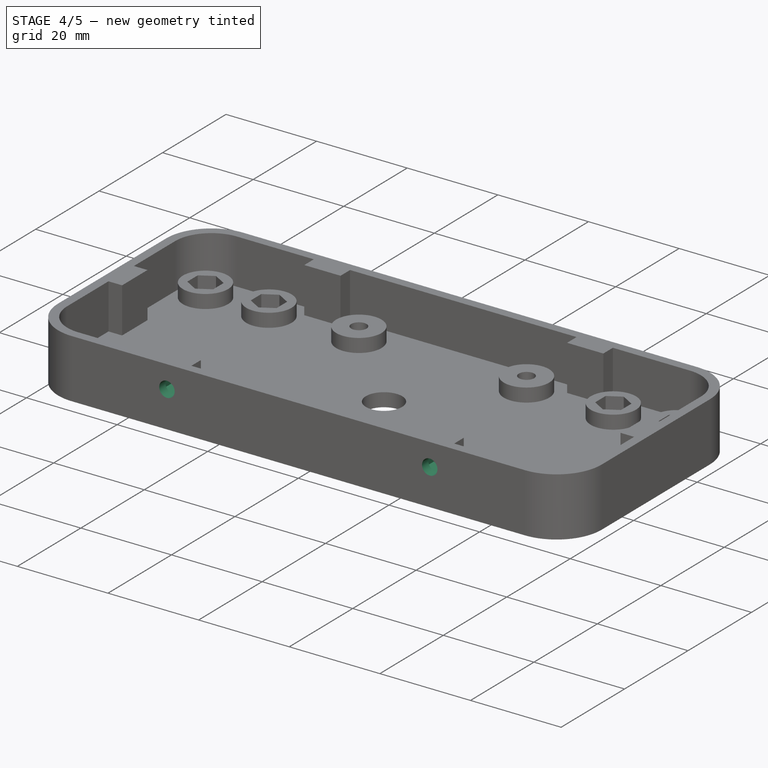
[diagram: stage 4 of 5 — iso view after this stage's code; geometry added in this stage tinted green]
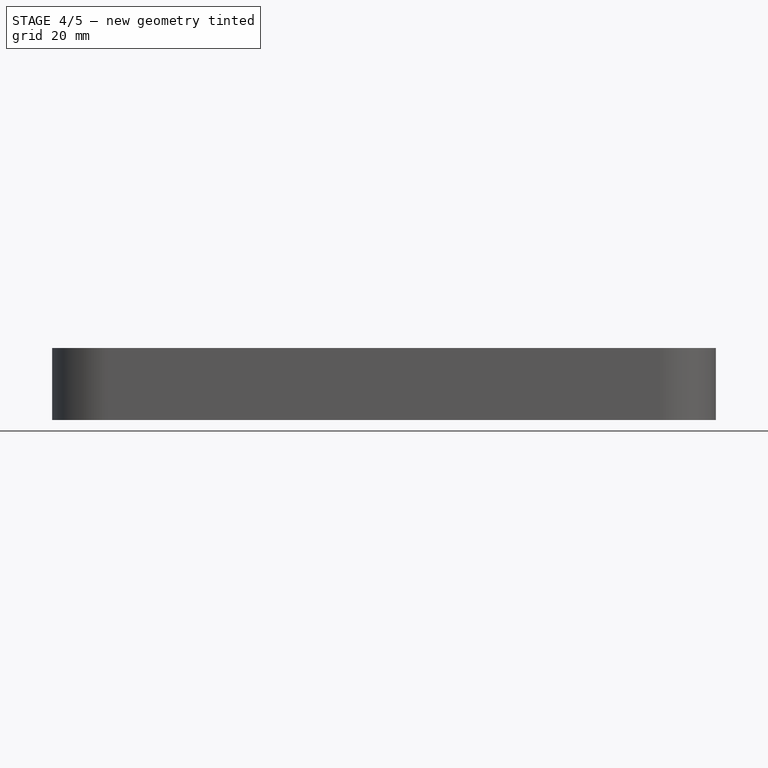
[diagram: stage 4 of 5 — front view after this stage's code; geometry added in this stage tinted green]
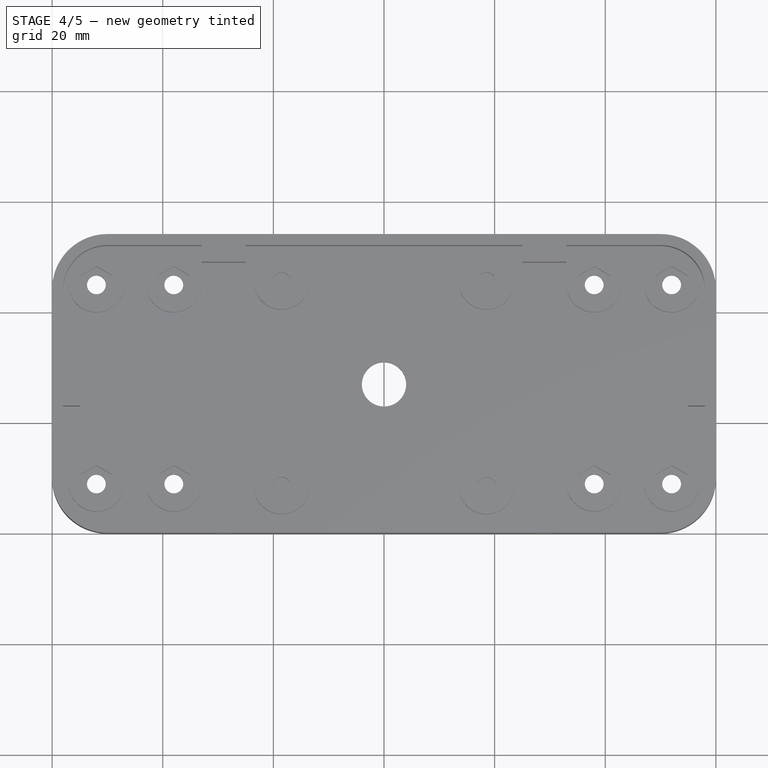
[diagram: stage 4 of 5 — top view after this stage's code; geometry added in this stage tinted green]
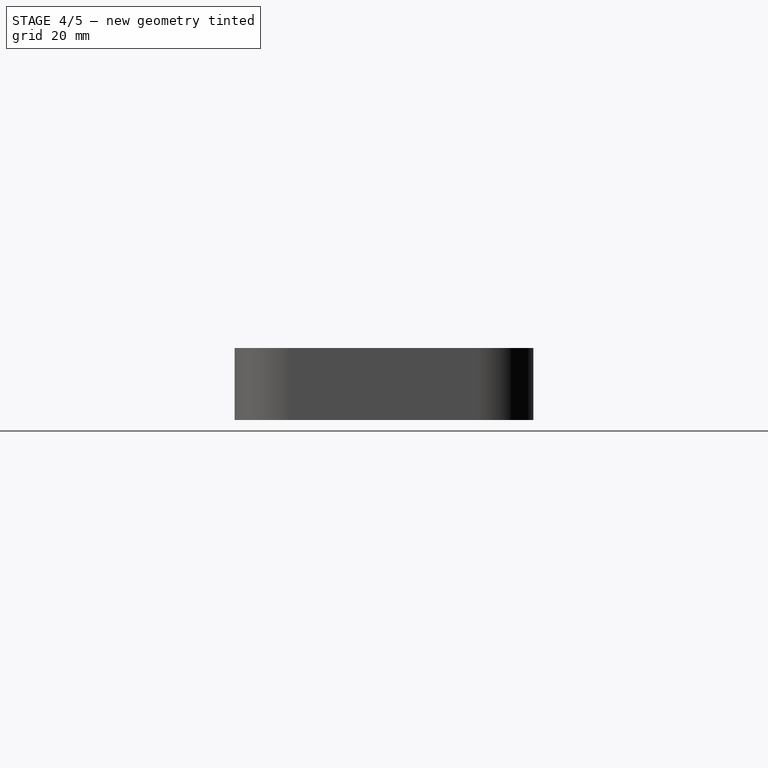
[diagram: stage 4 of 5 — right view after this stage's code; geometry added in this stage tinted green]
FEATURE [Sketcher::SketchObject] Sketch010
  Placement = pos=(0,52,0) rot=(1,0,0;1.5708rad)
  Support = -> Pocket005 [Face131]
  sketch-geometry (5):
    g0: LineSegment [constr] StartX=0 StartY=8 StartZ=0 EndX=31 EndY=8 EndZ=0
    g1: LineSegment [constr] StartX=31 StartY=8 StartZ=0 EndX=89 EndY=8 EndZ=0
    g2: LineSegment [constr] StartX=89 StartY=8 StartZ=0 EndX=120 EndY=8 EndZ=0
    g3: Circle CenterX=31 CenterY=8 CenterZ=0 NormalX=0 NormalY=0 NormalZ=1 Radius=1.7
    g4: Circle CenterX=89 CenterY=8 CenterZ=0 NormalX=0 NormalY=0 NormalZ=1 Radius=1.7
  constraints (14):
    c: PointOnObject(g0,g-2)
    c: Horizontal(g0)
    c: Coincident(g0,g1)
    c: Horizontal(g1)
    c: Coincident(g1,g2)
    c: Horizontal(g2)
    c: Equal(g2,g0)
    c: DistanceY(g0) = 8
    c: DistanceX(g0,g2) = 120
    c: DistanceX(g0,g1) = 58
    c: Coincident(g3,g0)
    c: Coincident(g4,g1)
    c: Equal(g4,g3)
    c: Radius(g3) = 1.7
FEATURE [PartDesign::Pocket] Pocket006
  Length = 3
  Sketch = -> Sketch010
  Type = 0
FEATURE [Sketcher::SketchObject] Sketch011
  Placement = pos=(0,5,0) rot=(0,0.707107,0.707107;3.14159rad)
  Support = -> Pocket006 [Face116]
  sketch-geometry (17):
    g0: LineSegment [constr] StartX=-120 StartY=8 StartZ=0 EndX=-89 EndY=8 EndZ=0
    g1: LineSegment [constr] StartX=-89 StartY=8 StartZ=0 EndX=-31 EndY=8 EndZ=0
    g2: LineSegment [constr] StartX=-31 StartY=8 StartZ=0 EndX=0 EndY=8 EndZ=0
    g3: LineSegment StartX=-86.4019 StartY=9.5 StartZ=0 EndX=-89 EndY=11 EndZ=0
    g4: LineSegment StartX=-89 StartY=11 StartZ=0 EndX=-91.5981 EndY=9.5 EndZ=0
    g5: LineSegment StartX=-91.5981 StartY=9.5 StartZ=0 EndX=-91.5981 EndY=6.5 EndZ=0
    g6: LineSegment StartX=-91.5981 StartY=6.5 StartZ=0 EndX=-89 EndY=5 EndZ=0
    g7: LineSegment StartX=-89 StartY=5 StartZ=0 EndX=-86.4019 EndY=6.5 EndZ=0
    g8: LineSegment StartX=-86.4019 StartY=6.5 StartZ=0 EndX=-86.4019 EndY=9.5 EndZ=0
    g9: Circle [constr] CenterX=-89 CenterY=8 CenterZ=0 NormalX=0 NormalY=0 NormalZ=1 Radius=3
    g10: LineSegment StartX=-28.4019 StartY=9.5 StartZ=0 EndX=-31 EndY=11 EndZ=0
    g11: LineSegment StartX=-31 StartY=11 StartZ=0 EndX=-33.5981 EndY=9.5 EndZ=0
    g12: LineSegment StartX=-33.5981 StartY=9.5 StartZ=0 EndX=-33.5981 EndY=6.5 EndZ=0
    g13: LineSegment StartX=-33.5981 StartY=6.5 StartZ=0 EndX=-31 EndY=5 EndZ=0
    g14: LineSegment StartX=-31 StartY=5 StartZ=0 EndX=-28.4019 EndY=6.5 EndZ=0
    g15: LineSegment StartX=-28.4019 StartY=6.5 StartZ=0 EndX=-28.4019 EndY=9.5 EndZ=0
    g16: Circle [constr] CenterX=-31 CenterY=8 CenterZ=0 NormalX=0 NormalY=0 NormalZ=1 Radius=3
  constraints (42):
    c: Horizontal(g0)
    c: Coincident(g0,g1)
    c: Horizontal(g1)
    c: Coincident(g1,g2)
    c: Horizontal(g2)
    c: Equal(g2,g0)
    c: DistanceY(g0) = 8
    c: DistanceX(g0,g2) = 120
    c: DistanceX(g0,g1) = 58
    c: Coincident(g3,g4)
    c: Coincident(g4,g5)
    c: Coincident(g5,g6)
    c: Coincident(g6,g7)
    c: Coincident(g7,g8)
    c: Coincident(g8,g3)
    c: Equal(g3, g4-g8) x5
    c: PointOnObject(g3,g9)
    c: PointOnObject(g4,g9)
    c: PointOnObject(g5,g9)
    c: PointOnObject(g6,g9)
    c: PointOnObject(g7,g9)
    c: PointOnObject(g8,g9)
    c: Coincident(g9,g0)
    c: Coincident(g10,g11)
    c: Coincident(g11,g12)
    c: Coincident(g12,g13)
    c: Coincident(g13,g14)
    c: Coincident(g14,g15)
    c: Coincident(g15,g10)
    c: Equal(g10, g11-g15) x5
    c: PointOnObject(g10,g16)
    c: PointOnObject(g11,g16)
    c: PointOnObject(g12,g16)
    c: PointOnObject(g13,g16)
    c: PointOnObject(g14,g16)
    c: PointOnObject(g15,g16)
    c: Coincident(g16,g1)
    c: Equal(g16,g9)
    c: Radius(g9) = 3
    c: Vertical(g12)
    c: Vertical(g5)
    c: PointOnObject(g2,g-2)
FEATURE [PartDesign::Pocket] Pocket007
  Length = 3
  Sketch = -> Sketch011
  Type = 0
FEATURE [Sketcher::SketchObject] Sketch012
  Placement = pos=(0,2,0) rot=(0,0.707107,0.707107;3.14159rad)
  Support = -> Pocket007 [Face185]
  sketch-geometry (5):
    g0: LineSegment [constr] StartX=-120 StartY=8 StartZ=0 EndX=-89 EndY=8 EndZ=0
    g1: LineSegment [constr] StartX=-89 StartY=8 StartZ=0 EndX=-31 EndY=8 EndZ=0
    g2: LineSegment [constr] StartX=-31 StartY=8 StartZ=0 EndX=0 EndY=8 EndZ=0
    g3: Circle CenterX=-89 CenterY=8 CenterZ=0 NormalX=0 NormalY=0 NormalZ=1 Radius=1.7
    g4: Circle CenterX=-31 CenterY=8 CenterZ=0 NormalX=0 NormalY=0 NormalZ=1 Radius=1.7
  constraints (14):
    c: Horizontal(g0)
    c: Coincident(g0,g1)
    c: Horizontal(g1)
    c: Coincident(g1,g2)
    c: Horizontal(g2)
    c: Equal(g2,g0)
    c: DistanceY(g0) = 8
    c: DistanceX(g0,g2) = 120
    c: DistanceX(g0,g1) = 58
    c: Coincident(g3,g0)
    c: Coincident(g4,g1)
    c: Equal(g4,g3)
    c: Radius(g3) = 1.7
    c: PointOnObject(g2,g-2)
FEATURE [PartDesign::Pocket] Pocket008
  Length = 3
  Sketch = -> Sketch012
  Type = 0
FEATURE [Sketcher::SketchObject] Sketch013
  Placement = pos=(115,0,0) rot=(0.57735,-0.57735,-0.57735;2.0944rad)
  Support = -> Pocket008 [Face127]
  sketch-geometry (9):
    g0: LineSegment [constr] StartX=0 StartY=8 StartZ=0 EndX=-27 EndY=8 EndZ=0
    g1: LineSegment [constr] StartX=-27 StartY=8 StartZ=0 EndX=-54 EndY=8 EndZ=0
    g2: LineSegment StartX=-24.4019 StartY=6.5 StartZ=0 EndX=-24.4019 EndY=9.5 EndZ=0
    g3: LineSegment StartX=-24.4019 StartY=9.5 StartZ=0 EndX=-27 EndY=11 EndZ=0
    g4: LineSegment StartX=-27 StartY=11 StartZ=0 EndX=-29.5981 EndY=9.5 EndZ=0
    g5: LineSegment StartX=-29.5981 StartY=9.5 StartZ=0 EndX=-29.5981 EndY=6.5 EndZ=0
    g6: LineSegment StartX=-29.5981 StartY=6.5 StartZ=0 EndX=-27 EndY=5 EndZ=0
    g7: LineSegment StartX=-27 StartY=5 StartZ=0 EndX=-24.4019 EndY=6.5 EndZ=0
    g8: Circle [constr] CenterX=-27 CenterY=8 CenterZ=0 NormalX=0 NormalY=0 NormalZ=1 Radius=3
  constraints (23):
    c: PointOnObject(g0,g-2)
    c: Horizontal(g0)
    c: Coincident(g0,g1)
    c: Horizontal(g1)
    c: Equal(g1,g0)
    c: Coincident(g2,g3)
    c: Coincident(g3,g4)
    c: Coincident(g4,g5)
    c: Coincident(g5,g6)
    c: Coincident(g6,g7)
    c: Coincident(g7,g2)
    c: Equal(g2, g3-g7) x5
    c: PointOnObject(g2,g8)
    c: PointOnObject(g3,g8)
    c: PointOnObject(g4,g8)
    c: PointOnObject(g5,g8)
    c: PointOnObject(g6,g8)
    c: PointOnObject(g7,g8)
    c: Coincident(g8,g0)
    c: DistanceY(g0) = 8
    c: DistanceX(g1,g0) = 54
    c: Radius(g8) = 3
    c: Vertical(g2)
FEATURE [PartDesign::Pocket] Pocket009
  Length = 3
  Sketch = -> Sketch013
  Type = 0
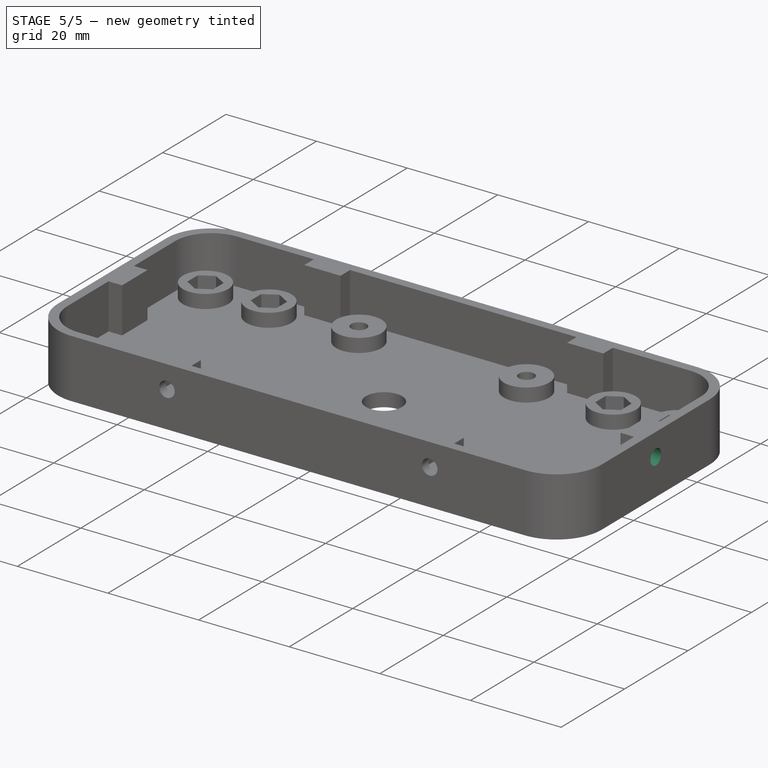
[diagram: stage 5 of 5 — iso view after this stage's code; geometry added in this stage tinted green]
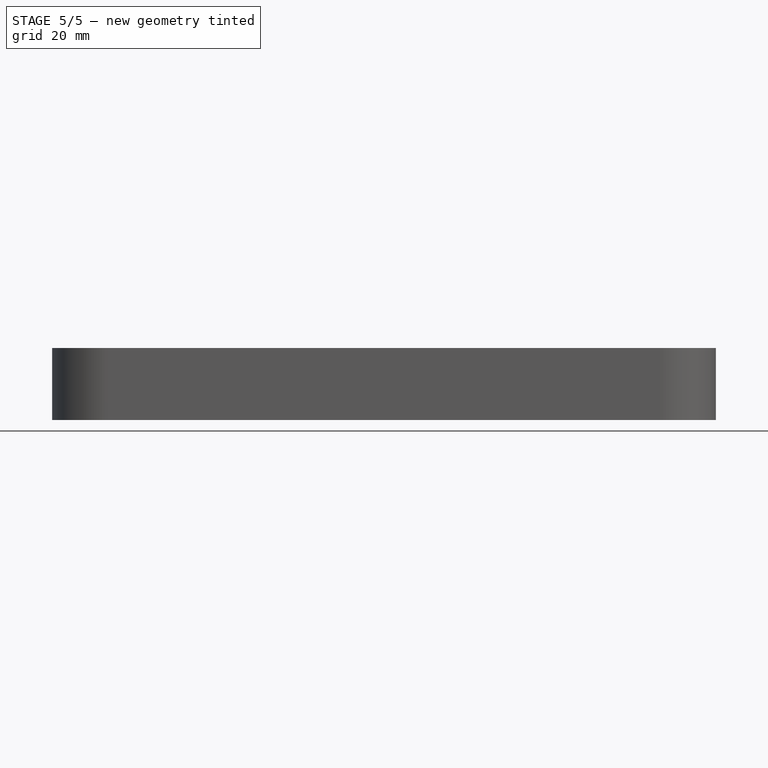
[diagram: stage 5 of 5 — front view after this stage's code; geometry added in this stage tinted green]
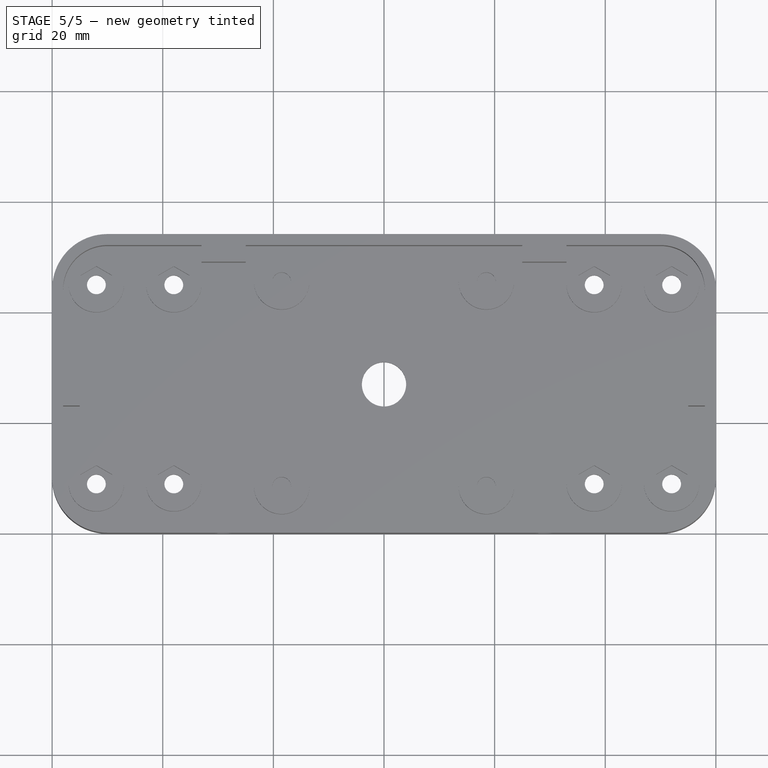
[diagram: stage 5 of 5 — top view after this stage's code; geometry added in this stage tinted green]
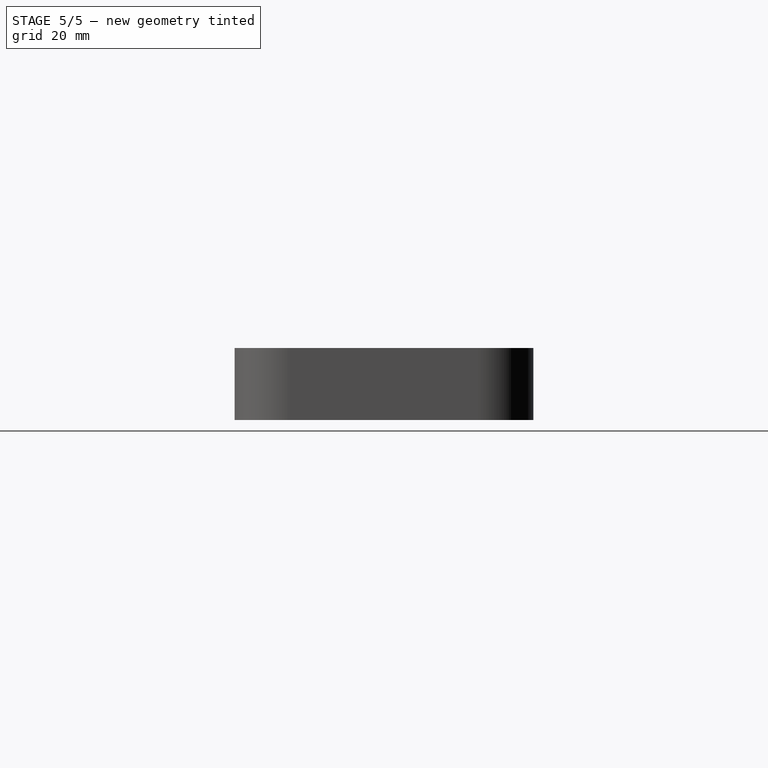
[diagram: stage 5 of 5 — right view after this stage's code; geometry added in this stage tinted green]
FEATURE [Sketcher::SketchObject] Sketch014
  Placement = pos=(118,0,0) rot=(0.57735,-0.57735,-0.57735;2.0944rad)
  Support = -> Pocket009 [Face195]
  sketch-geometry (3):
    g0: LineSegment [constr] StartX=0 StartY=8 StartZ=0 EndX=-27 EndY=8 EndZ=0
    g1: LineSegment [constr] StartX=-27 StartY=8 StartZ=0 EndX=-54 EndY=8 EndZ=0
    g2: Circle CenterX=-27 CenterY=8 CenterZ=0 NormalX=0 NormalY=0 NormalZ=1 Radius=1.7
  constraints (9):
    c: PointOnObject(g0,g-2)
    c: Horizontal(g0)
    c: Coincident(g0,g1)
    c: Horizontal(g1)
    c: Equal(g1,g0)
    c: Coincident(g2,g0)
    c: DistanceY(g0) = 8
    c: DistanceX(g1,g0) = 54
    c: Radius(g2) = 1.7
FEATURE [PartDesign::Pocket] Pocket010
  Length = 3
  Sketch = -> Sketch014
  Type = 0
FEATURE [Sketcher::SketchObject] Sketch015
  Placement = pos=(85,0,0) rot=(0.57735,-0.57735,-0.57735;2.0944rad)
  Support = -> Pocket010 [Face121]
  sketch-geometry (9):
    g0: LineSegment [constr] StartX=54 StartY=8 StartZ=0 EndX=27 EndY=8 EndZ=0
    g1: LineSegment [constr] StartX=27 StartY=8 StartZ=0 EndX=0 EndY=8 EndZ=0
    g2: LineSegment StartX=29.5981 StartY=6.5 StartZ=0 EndX=29.5981 EndY=9.5 EndZ=0
    g3: LineSegment StartX=29.5981 StartY=9.5 StartZ=0 EndX=27 EndY=11 EndZ=0
    g4: LineSegment StartX=27 StartY=11 StartZ=0 EndX=24.4019 EndY=9.5 EndZ=0
    g5: LineSegment StartX=24.4019 StartY=9.5 StartZ=0 EndX=24.4019 EndY=6.5 EndZ=0
    g6: LineSegment StartX=24.4019 StartY=6.5 StartZ=0 EndX=27 EndY=5 EndZ=0
    g7: LineSegment StartX=27 StartY=5 StartZ=0 EndX=29.5981 EndY=6.5 EndZ=0
    g8: Circle [constr] CenterX=27 CenterY=8 CenterZ=0 NormalX=0 NormalY=0 NormalZ=1 Radius=3
  constraints (23):
    c: Horizontal(g0)
    c: Coincident(g0,g1)
    c: Horizontal(g1)
    c: Equal(g1,g0)
    c: Coincident(g2,g3)
    c: Coincident(g3,g4)
    c: Coincident(g4,g5)
    c: Coincident(g5,g6)
    c: Coincident(g6,g7)
    c: Coincident(g7,g2)
    c: Equal(g2, g3-g7) x5
    c: PointOnObject(g2,g8)
    c: PointOnObject(g3,g8)
    c: PointOnObject(g4,g8)
    c: PointOnObject(g5,g8)
    c: PointOnObject(g6,g8)
    c: PointOnObject(g7,g8)
    c: Coincident(g8,g0)
    c: DistanceY(g0) = 8
    c: DistanceX(g1,g0) = 54
    c: Radius(g8) = 3
    c: Vertical(g2)
    c: PointOnObject(g1,g-2)
FEATURE [PartDesign::Pocket] Pocket011
  Length = 3
  Sketch = -> Sketch015
  Type = 0
FEATURE [Sketcher::SketchObject] Sketch016
  Placement = pos=(2,0,0) rot=(0.57735,0.57735,0.57735;2.0944rad)
  Support = -> Pocket011 [Face135]
  sketch-geometry (3):
    g0: LineSegment [constr] StartX=54 StartY=8 StartZ=0 EndX=27 EndY=8 EndZ=0
    g1: LineSegment [constr] StartX=27 StartY=8 StartZ=0 EndX=0 EndY=8 EndZ=0
    g2: Circle CenterX=27 CenterY=8 CenterZ=0 NormalX=0 NormalY=0 NormalZ=1 Radius=1.7
  constraints (9):
    c: Horizontal(g0)
    c: Coincident(g0,g1)
    c: Horizontal(g1)
    c: Equal(g1,g0)
    c: Coincident(g2,g0)
    c: DistanceY(g0) = 8
    c: DistanceX(g1,g0) = 54
    c: Radius(g2) = 1.7
    c: PointOnObject(g1,g-2)
FEATURE [PartDesign::Pocket] Pocket012
  Length = 3
  Sketch = -> Sketch016
  Type = 0
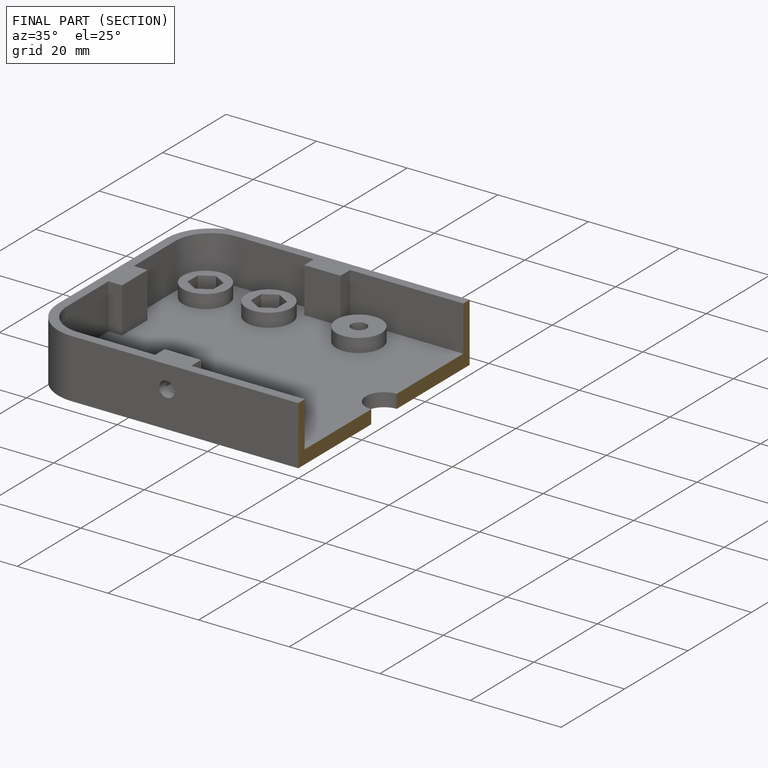
[diagram: finished part — half-section view (interior)]
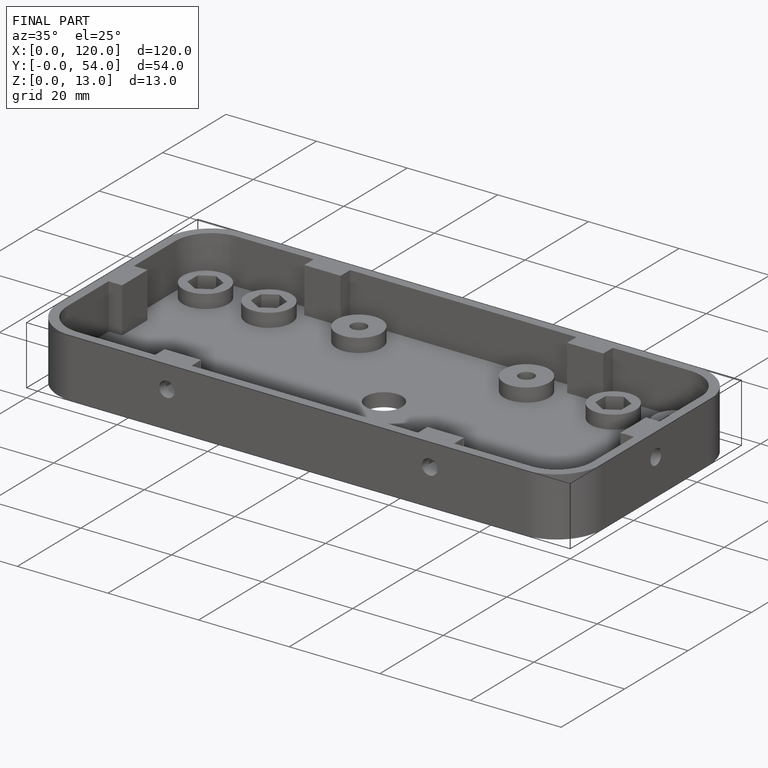
[diagram: finished part — iso view with bounding-box wireframe]
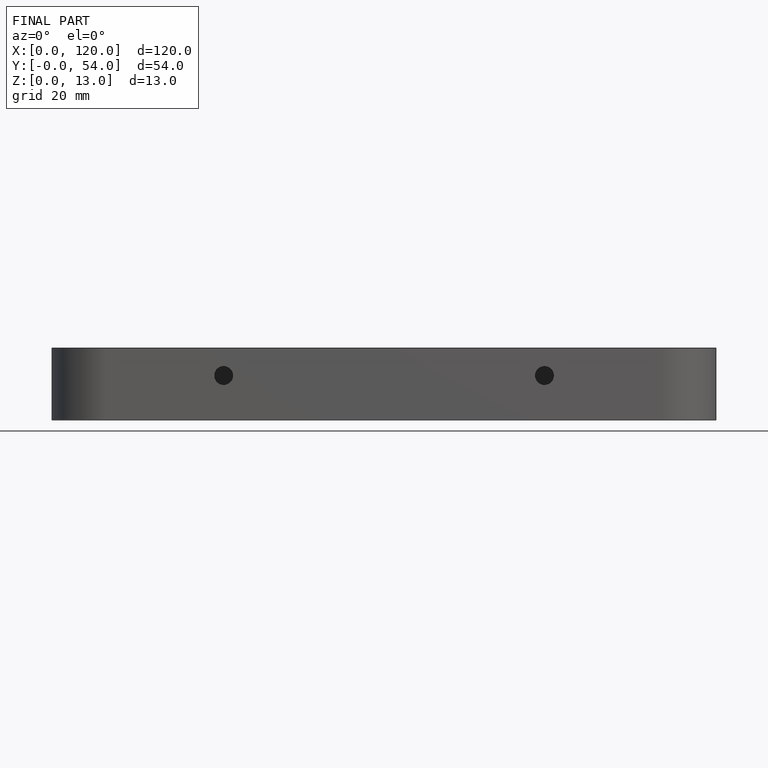
[diagram: finished part — front view with bounding-box wireframe]
